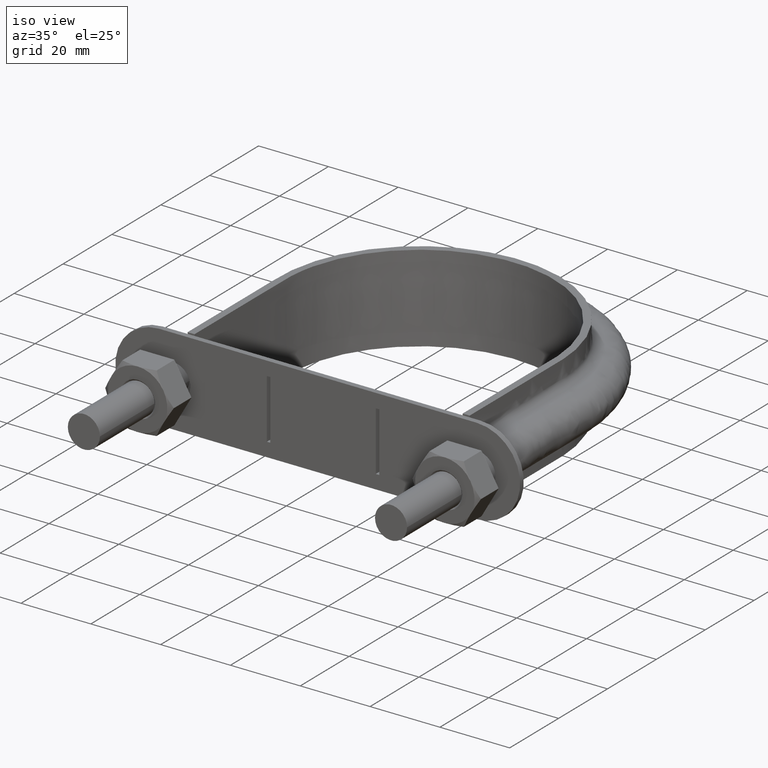
[diagram: clean part render]
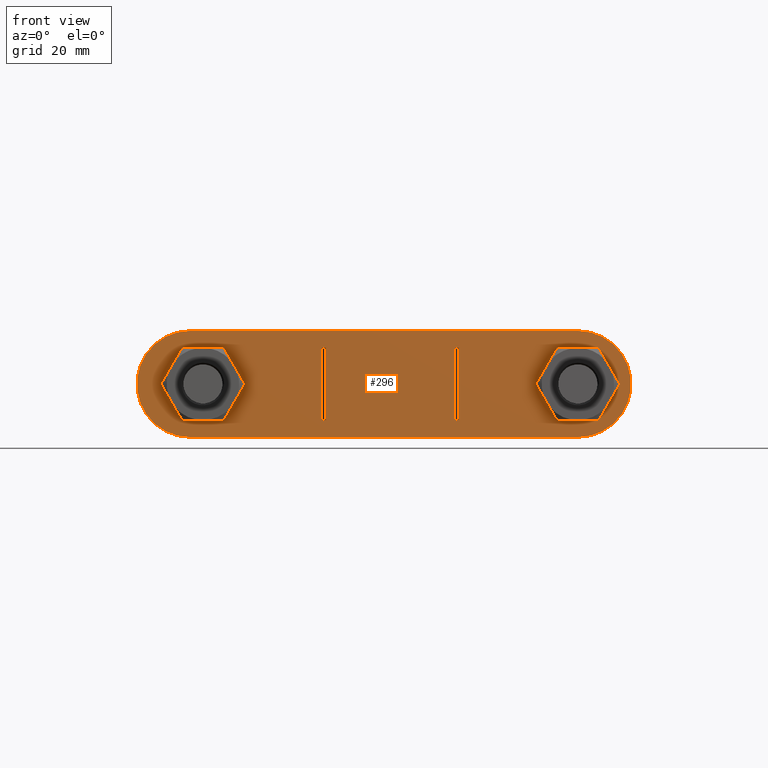
[diagram: tour spotlight — one face highlighted and labeled with its STEP entity id]
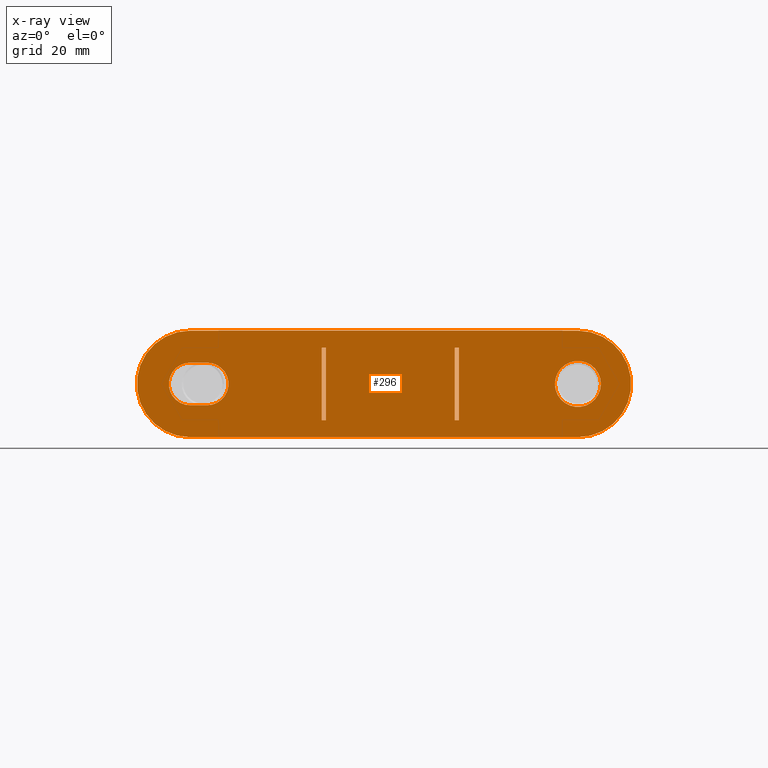
[diagram: x-ray of the same camera — body ghosted, this tour face saturated]
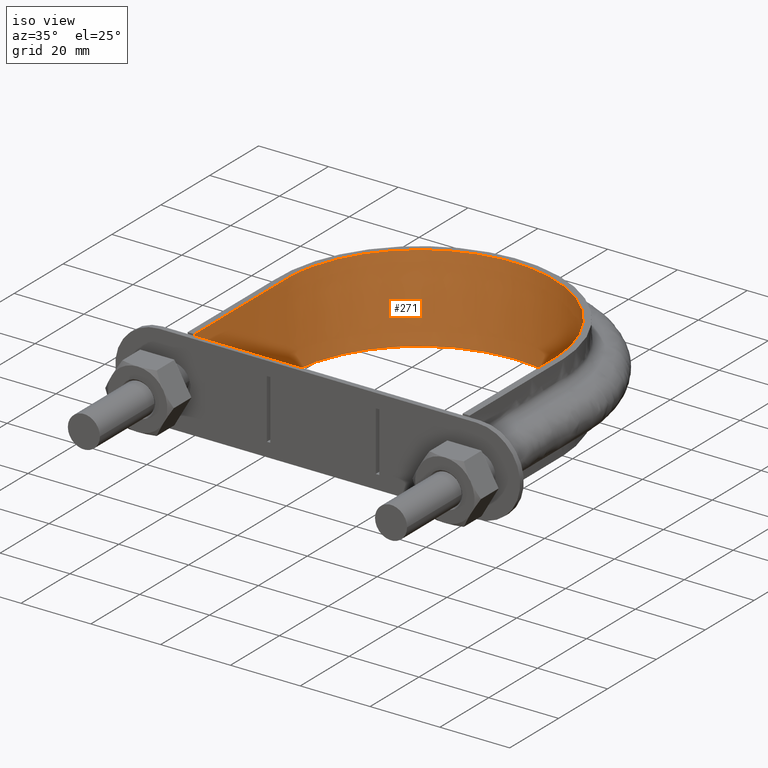
[diagram: tour spotlight — one face highlighted and labeled with its STEP entity id]
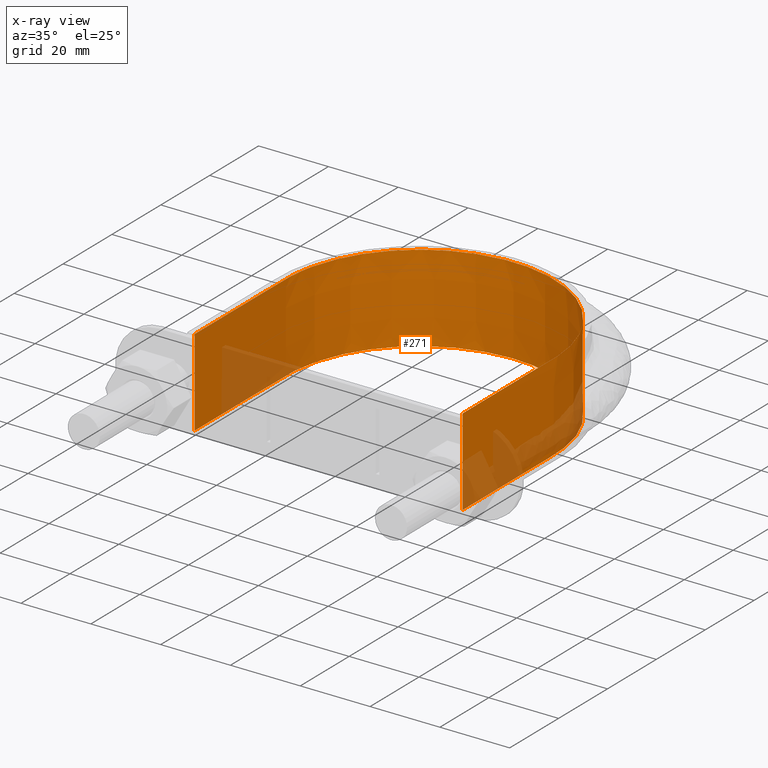
[diagram: x-ray of the same camera — body ghosted, this tour face saturated]
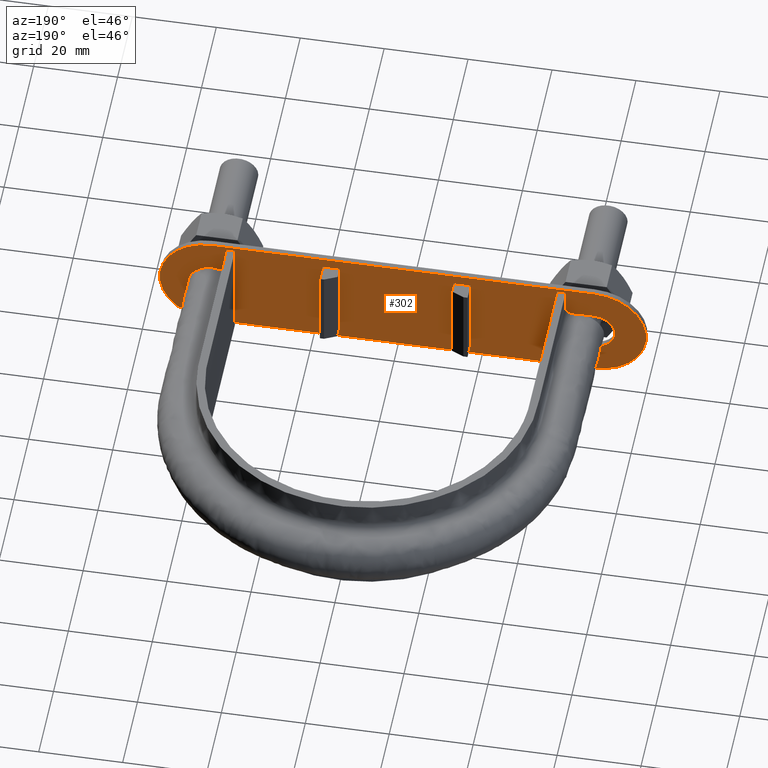
[diagram: tour spotlight — one face highlighted and labeled with its STEP entity id]
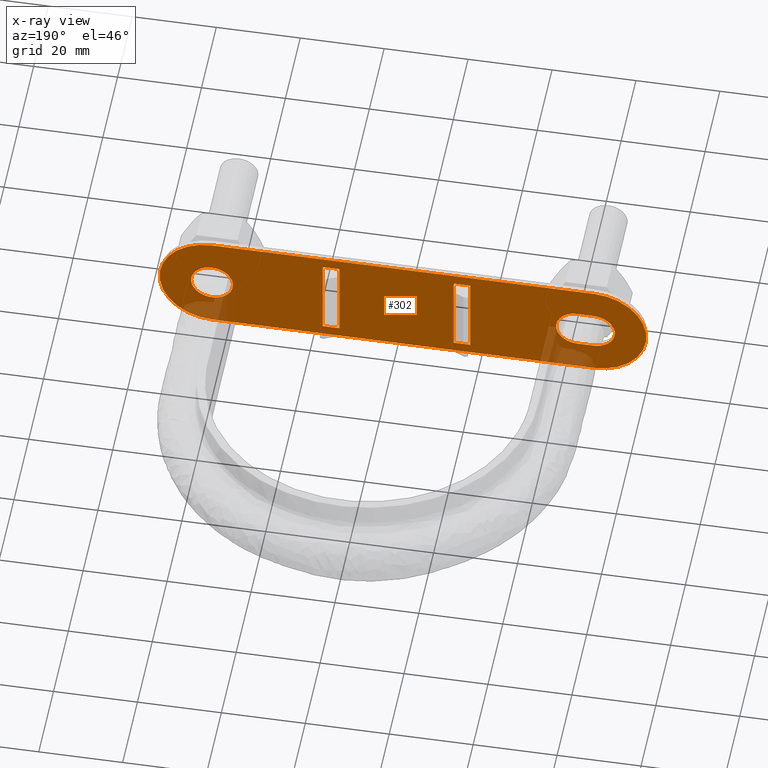
[diagram: x-ray of the same camera — body ghosted, this tour face saturated]
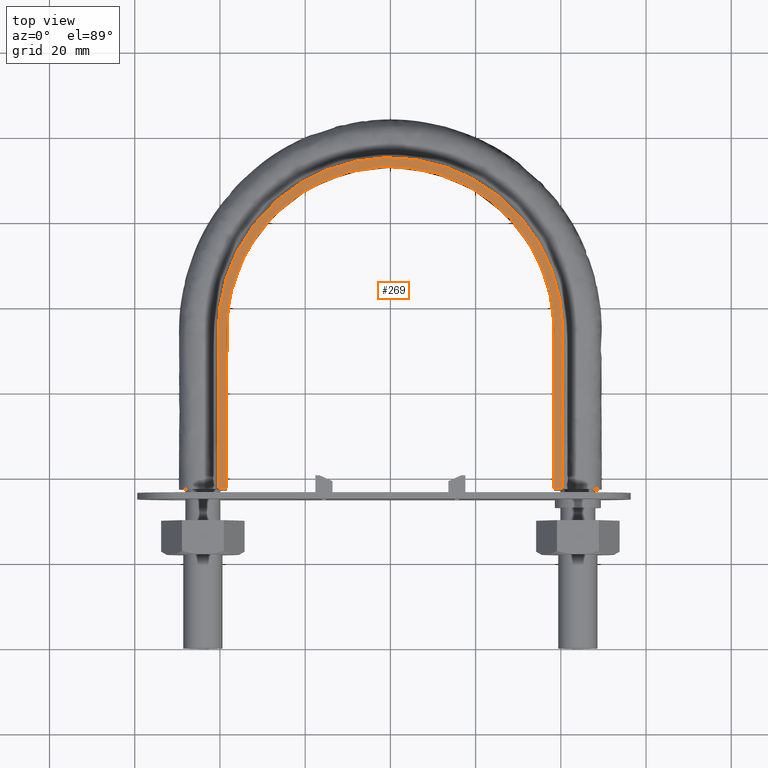
[diagram: tour spotlight — one face highlighted and labeled with its STEP entity id]
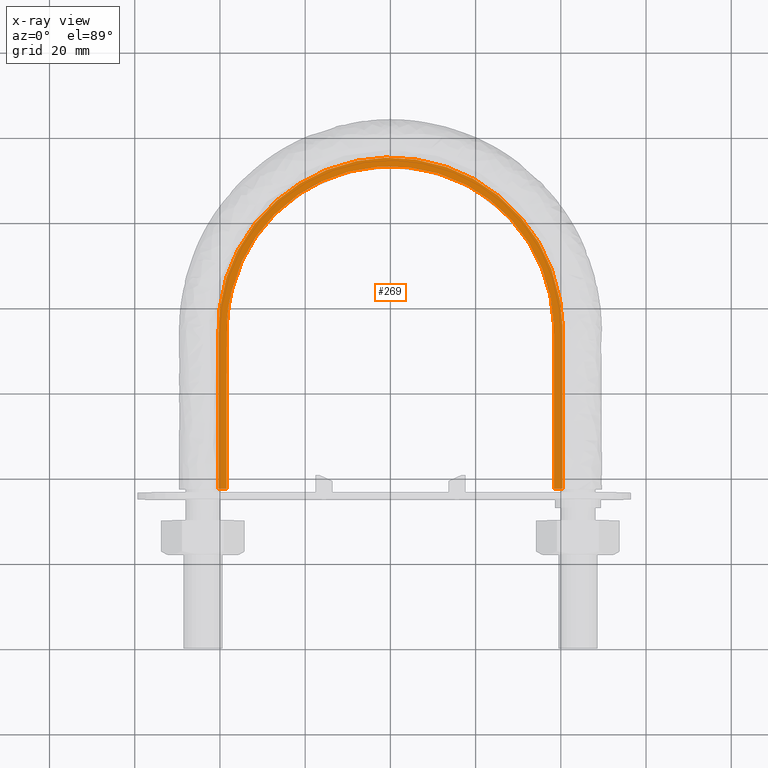
[diagram: x-ray of the same camera — body ghosted, this tour face saturated]
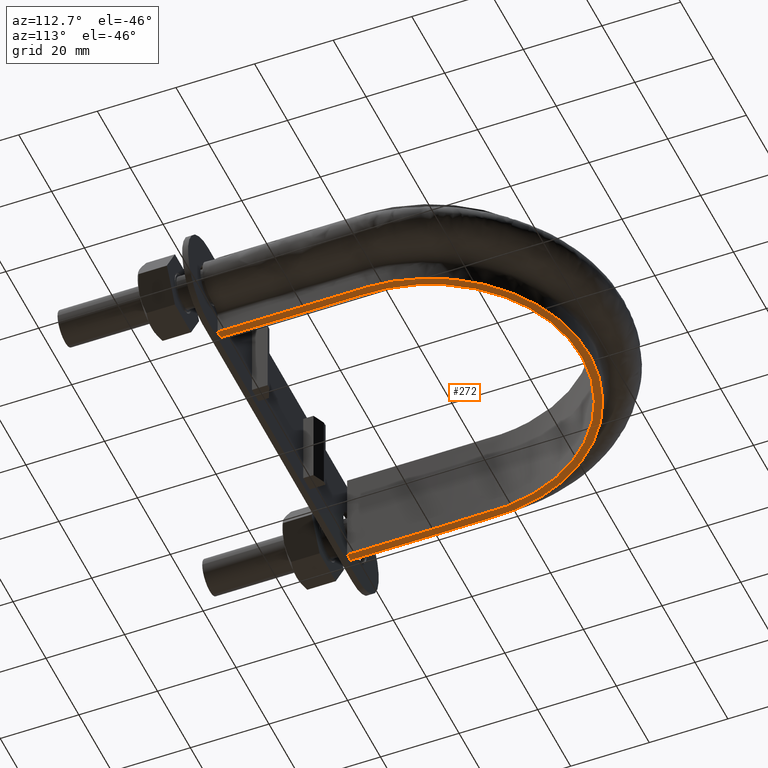
[diagram: tour spotlight — one face highlighted and labeled with its STEP entity id]
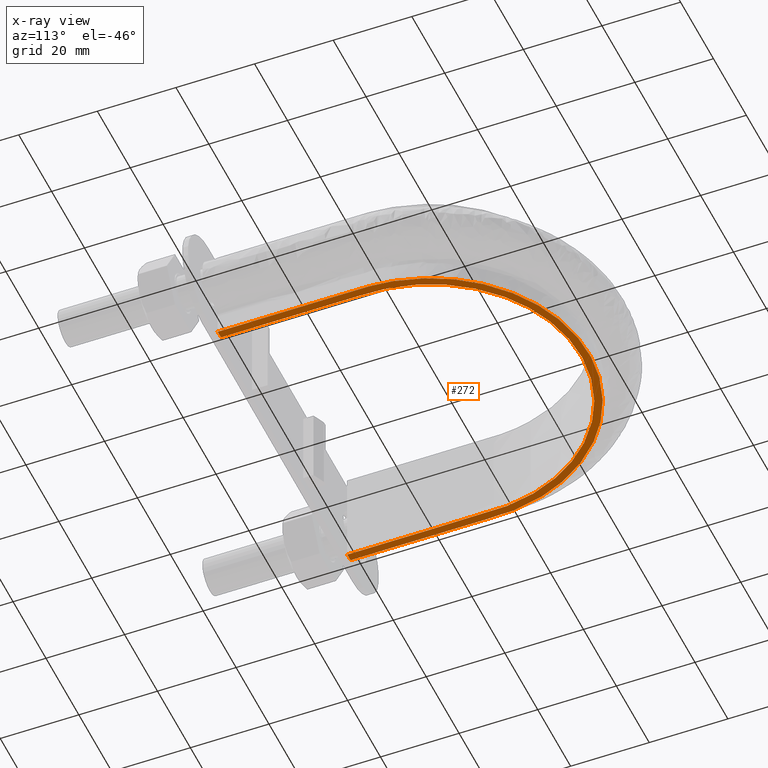
[diagram: x-ray of the same camera — body ghosted, this tour face saturated]
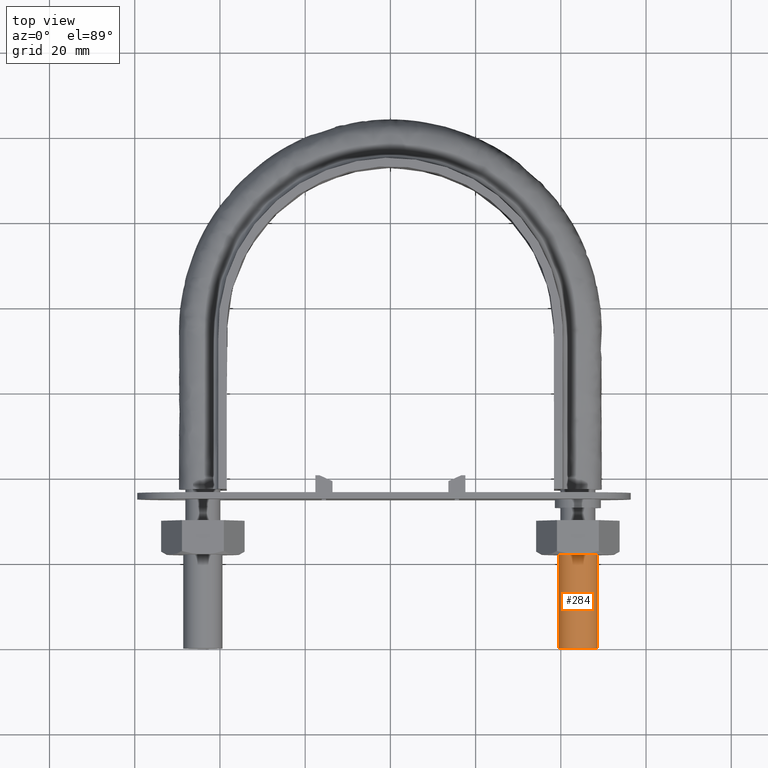
[diagram: tour spotlight — one face highlighted and labeled with its STEP entity id]
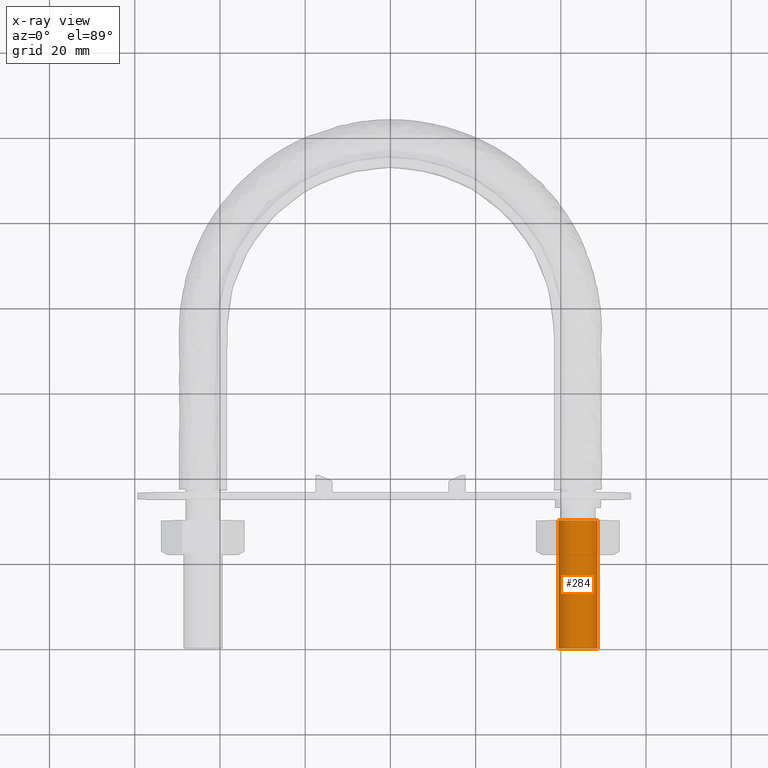
[diagram: x-ray of the same camera — body ghosted, this tour face saturated]
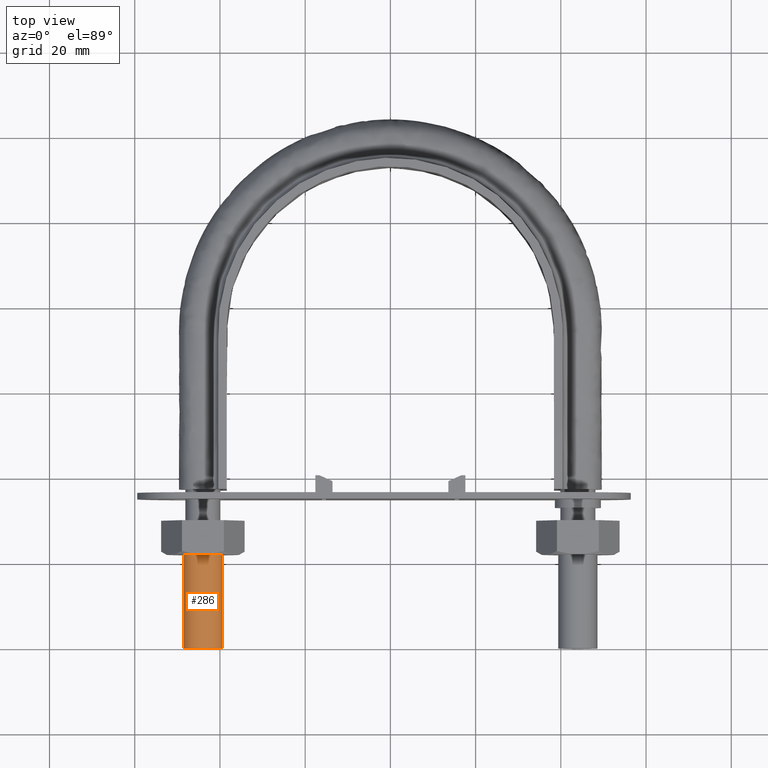
[diagram: tour spotlight — one face highlighted and labeled with its STEP entity id]
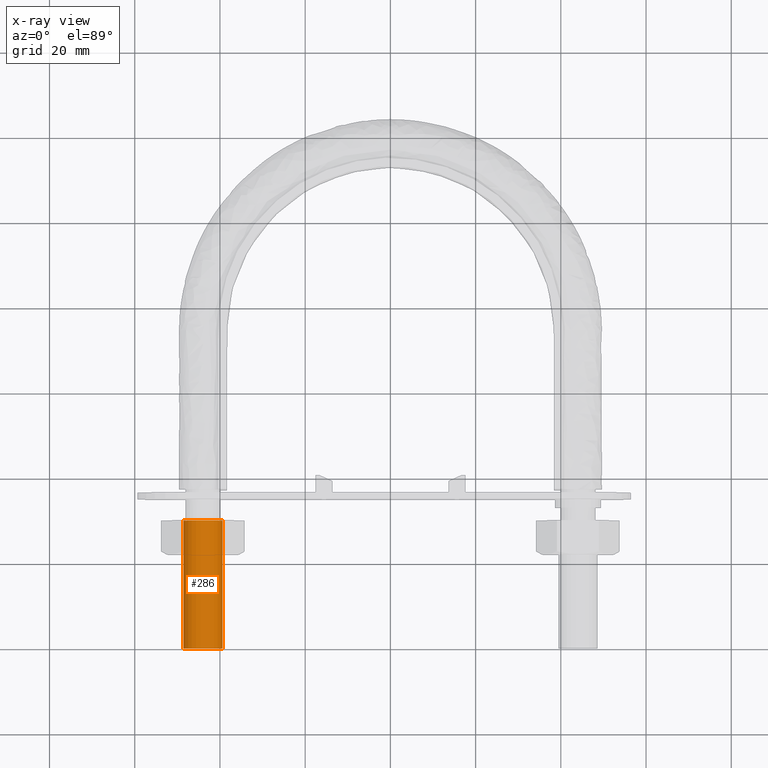
[diagram: x-ray of the same camera — body ghosted, this tour face saturated]
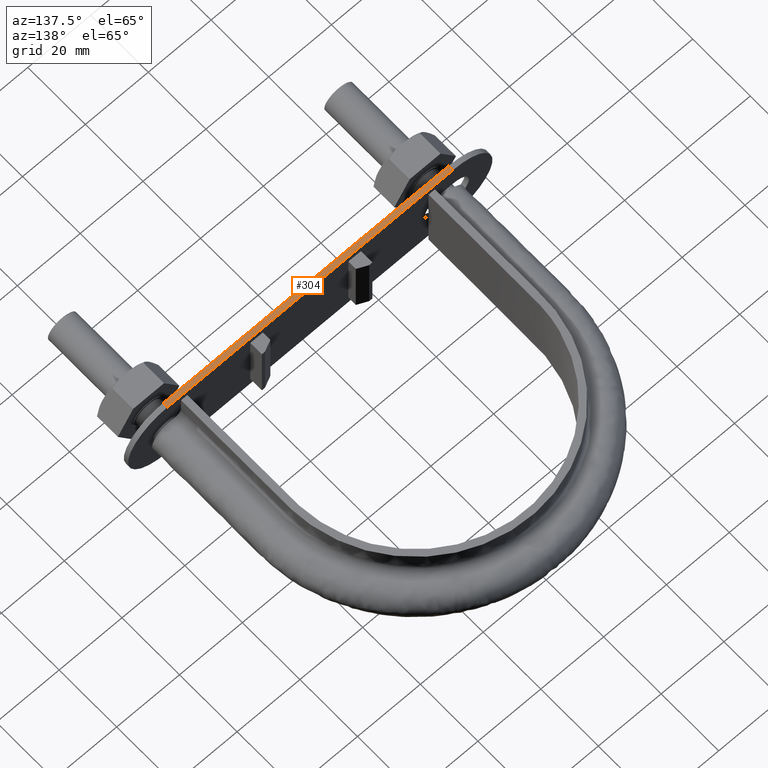
[diagram: tour spotlight — one face highlighted and labeled with its STEP entity id]
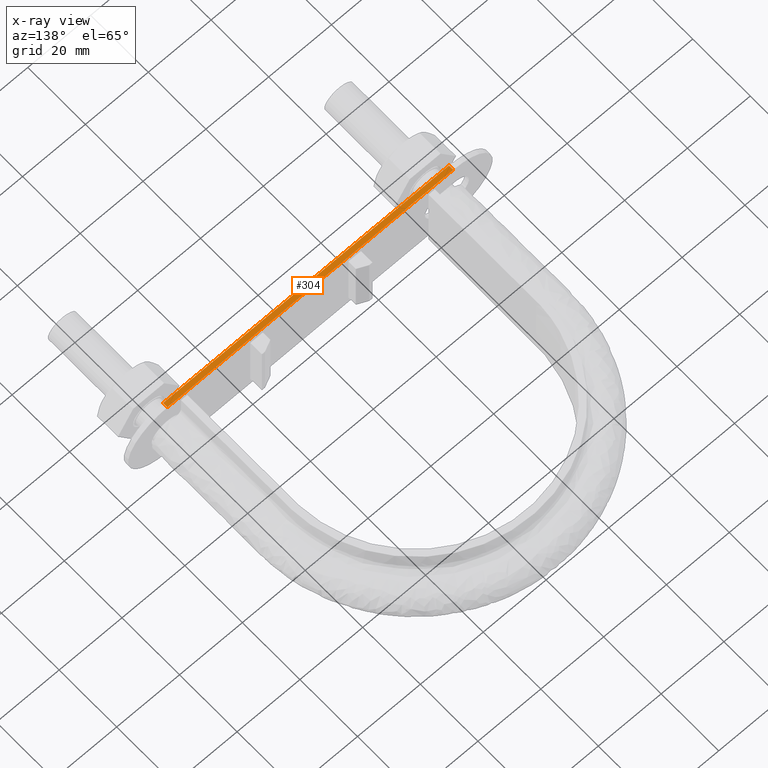
[diagram: x-ray of the same camera — body ghosted, this tour face saturated]
A machine part: a face-by-face anatomy tour. The part has 110 B-rep faces; the first image is the clean iso view, then the 8 largest visible faces are spotlighted one at a time (largest first), each with its STEP entity span.

Face 1 — front view, entity #296. An x-ray twin of the same camera follows (body ghosted, this face saturated) — the face is partly hidden behind the body. In plain terms, the highlighted planar face has unit normal (-0, 1, 0).
Definition (entity closure, byte-faithful):
#296 = ADVANCED_FACE( '', ( #443, #444, #445, #446, #447 ), #448, .F. );
#443 = FACE_OUTER_BOUND( '', #1367, .T. );
#444 = FACE_BOUND( '', #1368, .T. );
#445 = FACE_BOUND( '', #1369, .T. );
#446 = FACE_BOUND( '', #1370, .T. );
#447 = FACE_BOUND( '', #1371, .T. );
#448 = PLANE( '', #1372 );
#1367 = EDGE_LOOP( '', ( #1738, #1739, #1740, #1741 ) );
#1368 = EDGE_LOOP( '', ( #1742, #1743, #1744, #1745 ) );
#1369 = EDGE_LOOP( '', ( #1746 ) );
#1370 = EDGE_LOOP( '', ( #1747, #1748, #1749, #1750 ) );
#1371 = EDGE_LOOP( '', ( #1751, #1752, #1753, #1754 ) );
#1372 = AXIS2_PLACEMENT_3D( '', #1755, #1756, #1757 );
#1738 = ORIENTED_EDGE( '', *, *, #2399, .F. );
#1739 = ORIENTED_EDGE( '', *, *, #2400, .F. );
#1740 = ORIENTED_EDGE( '', *, *, #2401, .F. );
#1741 = ORIENTED_EDGE( '', *, *, #2402, .F. );
#1742 = ORIENTED_EDGE( '', *, *, #2403, .F. );
#1743 = ORIENTED_EDGE( '', *, *, #2404, .T. );
#1744 = ORIENTED_EDGE( '', *, *, #2405, .T. );
#1745 = ORIENTED_EDGE( '', *, *, #2406, .F. );
#1746 = ORIENTED_EDGE( '', *, *, #2407, .T. );
#1747 = ORIENTED_EDGE( '', *, *, #2408, .F. );
#1748 = ORIENTED_EDGE( '', *, *, #2409, .F. );
#1749 = ORIENTED_EDGE( '', *, *, #2410, .F. );
#1750 = ORIENTED_EDGE( '', *, *, #2411, .F. );
#1751 = ORIENTED_EDGE( '', *, *, #2412, .T. );
#1752 = ORIENTED_EDGE( '', *, *, #2413, .T. );
#1753 = ORIENTED_EDGE( '', *, *, #2414, .F. );
#1754 = ORIENTED_EDGE( '', *, *, #2415, .F. );
#1755 = CARTESIAN_POINT( '', ( -46.9999999974181, 34.9999999191038, 3.83343873051651E-013 ) );
#1756 = DIRECTION( '', ( -1.72119943411863E-009, 1.00000000000000, 1.90902509863633E-016 ) );
#1757 = DIRECTION( '', ( 1.10912487001477E-007, 0.000000000000000, 0.999999999999994 ) );
#2399 = EDGE_CURVE( '', #2659, #2660, #2661, .T. );
#2400 = EDGE_CURVE( '', #2662, #2659, #2663, .F. );
#2401 = EDGE_CURVE( '', #2664, #2662, #2665, .T. );
#2402 = EDGE_CURVE( '', #2660, #2664, #2666, .F. );
#2403 = EDGE_CURVE( '', #2667, #2668, #2669, .F. );
#2404 = EDGE_CURVE( '', #2667, #2670, #2671, .T. );
#2405 = EDGE_CURVE( '', #2670, #2672, #2673, .T. );
#2406 = EDGE_CURVE( '', #2668, #2672, #2674, .T. );
#2407 = EDGE_CURVE( '', #2675, #2675, #2676, .T. );
#2408 = EDGE_CURVE( '', #2677, #2678, #2679, .F. );
#2409 = EDGE_CURVE( '', #2680, #2677, #2681, .T. );
#2410 = EDGE_CURVE( '', #2682, #2680, #2683, .F. );
#2411 = EDGE_CURVE( '', #2678, #2682, #2684, .T. );
#2412 = EDGE_CURVE( '', #2685, #2686, #2687, .F. );
#2413 = EDGE_CURVE( '', #2686, #2688, #2689, .T. );
#2414 = EDGE_CURVE( '', #2690, #2688, #2691, .T. );
#2415 = EDGE_CURVE( '', #2685, #2690, #2692, .T. );
#2659 = VERTEX_POINT( '', #3284 );
#2660 = VERTEX_POINT( '', #3285 );
#2661 = CIRCLE( '', #3286, 12.4999999999987 );
#2662 = VERTEX_POINT( '', #3287 );
#2663 = LINE( '', #3288, #3289 );
#2664 = VERTEX_POINT( '', #3290 );
#2665 = CIRCLE( '', #3291, 12.4999999999987 );
#2666 = LINE( '', #3292, #3293 );
#2667 = VERTEX_POINT( '', #3294 );
#2668 = VERTEX_POINT( '', #3295 );
#2669 = LINE( '', #3296, #3297 );
#2670 = VERTEX_POINT( '', #3298 );
#2671 = LINE( '', #3299, #3300 );
#2672 = VERTEX_POINT( '', #3301 );
#2673 = LINE( '', #3302, #3303 );
#2674 = LINE( '', #3304, #3305 );
#2675 = VERTEX_POINT( '', #3306 );
#2676 = CIRCLE( '', #3307, 5.39999999999999 );
#2677 = VERTEX_POINT( '', #3308 );
#2678 = VERTEX_POINT( '', #3309 );
#2679 = CIRCLE( '', #3310, 4.99999999999947 );
#2680 = VERTEX_POINT( '', #3311 );
#2681 = LINE( '', #3312, #3313 );
#2682 = VERTEX_POINT( '', #3314 );
#2683 = CIRCLE( '', #3315, 4.99999999999947 );
#2684 = LINE( '', #3316, #3317 );
#2685 = VERTEX_POINT( '', #3318 );
#2686 = VERTEX_POINT( '', #3319 );
#2687 = LINE( '', #3320, #3321 );
#2688 = VERTEX_POINT( '', #3322 );
#2689 = LINE( '', #3323, #3324 );
#2690 = VERTEX_POINT( '', #3325 );
#2691 = LINE( '', #3326, #3327 );
#2692 = LINE( '', #3328, #3329 );
#3284 = CARTESIAN_POINT( '', ( -46.9999999974181, 34.9999999191038, -12.4999999999983 ) );
#3285 = CARTESIAN_POINT( '', ( -46.9999999974181, 34.9999999191038, 12.4999999999991 ) );
#3286 = AXIS2_PLACEMENT_3D( '', #3886, #3887, #3888 );
#3287 = CARTESIAN_POINT( '', ( 44.0000000025818, 35.0000000757329, -12.4999999999983 ) );
#3288 = CARTESIAN_POINT( '', ( 44.0000000025818, 35.0000000757330, -12.4999999999983 ) );
#3289 = VECTOR( '', #3889, 1000.00000000000 );
#3290 = CARTESIAN_POINT( '', ( 44.0000000025818, 35.0000000757329, 12.4999999999991 ) );
#3291 = AXIS2_PLACEMENT_3D( '', #3890, #3891, #3892 );
#3292 = CARTESIAN_POINT( '', ( -46.9999999974181, 34.9999999191038, 12.4999999999991 ) );
#3293 = VECTOR( '', #3893, 1000.00000000000 );
#3294 = CARTESIAN_POINT( '', ( -16.0999999974182, 34.9999999722889, -8.49999999999872 ) );
#3295 = CARTESIAN_POINT( '', ( -15.0999999974181, 34.9999999740101, -8.49999999999872 ) );
#3296 = CARTESIAN_POINT( '', ( -16.0999999974182, 34.9999999722889, -8.49999999999872 ) );
#3297 = VECTOR( '', #3894, 1000.00000000000 );
#3298 = CARTESIAN_POINT( '', ( -16.0999999974182, 34.9999999722889, 8.49999999999947 ) );
#3299 = CARTESIAN_POINT( '', ( -16.0999999974182, 34.9999999722889, 3.70482938809738E-013 ) );
#3300 = VECTOR( '', #3895, 1000.00000000000 );
#3301 = CARTESIAN_POINT( '', ( -15.0999999974181, 34.9999999740101, 8.49999999999947 ) );
#3302 = CARTESIAN_POINT( '', ( -46.9999999974181, 34.9999999191038, 8.49999999999947 ) );
#3303 = VECTOR( '', #3896, 1000.00000000000 );
#3304 = CARTESIAN_POINT( '', ( -15.0999999974181, 34.9999999740101, -8.49999999999872 ) );
#3305 = VECTOR( '', #3897, 1000.00000000000 );
#3306 = CARTESIAN_POINT( '', ( 38.6000000025817, 35.0000000664385, 3.58100495395979E-013 ) );
#3307 = AXIS2_PLACEMENT_3D( '', #3898, #3899, #3900 );
#3308 = CARTESIAN_POINT( '', ( -46.9999999974181, 34.9999999191038, 4.99999999999985 ) );
#3309 = CARTESIAN_POINT( '', ( -46.9999999974181, 34.9999999191038, -4.99999999999908 ) );
#3310 = AXIS2_PLACEMENT_3D( '', #3901, #3902, #3903 );
#3311 = CARTESIAN_POINT( '', ( -42.9999999974181, 34.9999999259886, 4.99999999999985 ) );
#3312 = CARTESIAN_POINT( '', ( -42.9999999974181, 34.9999999259886, 4.99999999999985 ) );
#3313 = VECTOR( '', #3904, 1000.00000000000 );
#3314 = CARTESIAN_POINT( '', ( -42.9999999974181, 34.9999999259886, -4.99999999999908 ) );
#3315 = AXIS2_PLACEMENT_3D( '', #3905, #3906, #3907 );
#3316 = CARTESIAN_POINT( '', ( -46.9999999974181, 34.9999999191038, -4.99999999999908 ) );
#3317 = VECTOR( '', #3908, 1000.00000000000 );
#3318 = CARTESIAN_POINT( '', ( 16.1000000025818, 35.0000000277115, -8.49999999999873 ) );
#3319 = CARTESIAN_POINT( '', ( 15.1000000025818, 35.0000000259903, -8.49999999999873 ) );
#3320 = CARTESIAN_POINT( '', ( -46.9999999974181, 34.9999999191038, -8.49999999999873 ) );
#3321 = VECTOR( '', #3909, 1000.00000000000 );
#3322 = CARTESIAN_POINT( '', ( 15.1000000025818, 35.0000000259903, 8.49999999999946 ) );
#3323 = CARTESIAN_POINT( '', ( 15.1000000025818, 35.0000000259903, 3.72369943869765E-013 ) );
#3324 = VECTOR( '', #3910, 1000.00000000000 );
#3325 = CARTESIAN_POINT( '', ( 16.1000000025818, 35.0000000277115, 8.49999999999946 ) );
#3326 = CARTESIAN_POINT( '', ( 16.1000000025818, 35.0000000277115, 8.49999999999946 ) );
#3327 = VECTOR( '', #3911, 1000.00000000000 );
#3328 = CARTESIAN_POINT( '', ( 16.1000000025818, 35.0000000277115, -8.49999999999873 ) );
#3329 = VECTOR( '', #3912, 1000.00000000000 );
#3886 = CARTESIAN_POINT( '', ( -46.9999999974181, 34.9999999191038, 3.83343873051651E-013 ) );
#3887 = DIRECTION( '', ( -1.72119943411863E-009, 1.00000000000000, 1.90902509863633E-016 ) );
#3888 = DIRECTION( '', ( -1.00000000000000, -1.72119943411863E-009, 0.000000000000000 ) );
#3889 = DIRECTION( '', ( 1.00000000000000, 1.72119943411863E-009, -2.96462649798337E-016 ) );
#3890 = CARTESIAN_POINT( '', ( 44.0000000025818, 35.0000000757329, 3.56365771920002E-013 ) );
#3891 = DIRECTION( '', ( -1.72119943411863E-009, 1.00000000000000, 1.90902509863633E-016 ) );
#3892 = DIRECTION( '', ( -1.00000000000000, -1.72119943411863E-009, 0.000000000000000 ) );
#3893 = DIRECTION( '', ( -1.00000000000000, -1.72119943411863E-009, -3.28581347666297E-025 ) );
#3894 = DIRECTION( '', ( -1.00000000000000, -1.72119943411863E-009, 5.37241042523093E-026 ) );
#3895 = DIRECTION( '', ( 4.16211464468154E-016, -1.90902509147250E-016, 1.00000000000000 ) );
#3896 = DIRECTION( '', ( 1.00000000000000, 1.72119943411863E-009, -5.37241042523093E-026 ) );
#3897 = DIRECTION( '', ( 4.16211464468154E-016, -1.90902509147250E-016, 1.00000000000000 ) );
#3898 = CARTESIAN_POINT( '', ( 44.0000000025817, 35.0000000757329, 3.58100495395979E-013 ) );
#3899 = DIRECTION( '', ( -1.72119943411863E-009, 1.00000000000000, 1.90902509863633E-016 ) );
#3900 = DIRECTION( '', ( -1.00000000000000, -1.72119943411863E-009, 0.000000000000000 ) );
#3901 = CARTESIAN_POINT( '', ( -46.9999999974181, 34.9999999191038, 3.85078596527628E-013 ) );
#3902 = DIRECTION( '', ( -1.72119943411863E-009, 1.00000000000000, 1.90902509863633E-016 ) );
#3903 = DIRECTION( '', ( -1.00000000000000, -1.72119943411863E-009, 0.000000000000000 ) );
#3904 = DIRECTION( '', ( -1.00000000000000, -1.72119943411863E-009, -3.28581347666297E-025 ) );
#3905 = CARTESIAN_POINT( '', ( -42.9999999974181, 34.9999999259886, 3.83892745928434E-013 ) );
#3906 = DIRECTION( '', ( -1.72119943411863E-009, 1.00000000000000, 1.90902509863633E-016 ) );
#3907 = DIRECTION( '', ( -1.00000000000000, -1.72119943411863E-009, 0.000000000000000 ) );
#3908 = DIRECTION( '', ( 1.00000000000000, 1.72119943411863E-009, -2.96462649798337E-016 ) );
#3909 = DIRECTION( '', ( 1.00000000000000, 1.72119943411863E-009, -5.37241042523093E-026 ) );
#3910 = DIRECTION( '', ( 1.76713835785680E-016, -1.90902509559473E-016, 1.00000000000000 ) );
#3911 = DIRECTION( '', ( -1.00000000000000, -1.72119943411863E-009, 5.37241042523093E-026 ) );
#3912 = DIRECTION( '', ( 1.76713835785680E-016, -1.90902509559473E-016, 1.00000000000000 ) );

Face 2 — iso view, entity #271. An x-ray twin of the same camera follows (body ghosted, this face saturated) — the face is partly hidden behind the body. In plain terms, the highlighted face is a SurfaceOfExtrusion surface.
Definition (entity closure, byte-faithful):
#271 = ADVANCED_FACE( '', ( #386 ), #387, .T. );
#386 = FACE_OUTER_BOUND( '', #1160, .T. );
#387 = SURFACE_OF_LINEAR_EXTRUSION( '', #1161, #1162 );
#1160 = EDGE_LOOP( '', ( #1575, #1576, #1577, #1578 ) );
#1161 = B_SPLINE_CURVE_WITH_KNOTS( '', 3, ( #1579, #1580, #1581, #1582, #1583, #1584, #1585, #1586, #1587, #1588, #1589, #1590, #1591, #1592, #1593, #1594, #1595 ), .UNSPECIFIED., .F., .F., ( 4, 3, 1, 1, 1, 1, 1, 1, 1, 3, 4 ), ( -7.93017456359102, -7.00000000000000, -6.50000000000000, -6.00000000000000, -5.00000000000000, -4.00000000000000, -3.00000000000000, -2.00000000000000, -1.50000000000000, -1.00000000000000, -0.0698254364089773 ), .UNSPECIFIED. );
#1162 = VECTOR( '', #1596, 1000.00000000000 );
#1575 = ORIENTED_EDGE( '', *, *, #2353, .T. );
#1576 = ORIENTED_EDGE( '', *, *, #2364, .T. );
#1577 = ORIENTED_EDGE( '', *, *, #2362, .F. );
#1578 = ORIENTED_EDGE( '', *, *, #2360, .T. );
#1579 = CARTESIAN_POINT( '', ( 38.4000000000000, 37.3000000000000, 12.5000100000909 ) );
#1580 = CARTESIAN_POINT( '', ( 38.4000000000000, 49.7333333333333, 12.5000100000909 ) );
#1581 = CARTESIAN_POINT( '', ( 38.4000000000000, 62.1666666666667, 12.5000100000909 ) );
#1582 = CARTESIAN_POINT( '', ( 38.4000000000000, 74.6000000000000, 12.5000100000909 ) );
#1583 = CARTESIAN_POINT( '', ( 38.4000000000000, 77.9378960382428, 12.5000100000909 ) );
#1584 = CARTESIAN_POINT( '', ( 37.5004323173849, 84.6534987012364, 12.5000100000909 ) );
#1585 = CARTESIAN_POINT( '', ( 32.3590360537293, 97.1468427507952, 12.5000100000909 ) );
#1586 = CARTESIAN_POINT( '', ( 20.0971465093487, 109.410921736661, 12.5000100000909 ) );
#1587 = CARTESIAN_POINT( '', ( 2.79356000082899E-014, 114.794539131670, 12.5000100000909 ) );
#1588 = CARTESIAN_POINT( '', ( -20.0971465093486, 109.410921736661, 12.5000100000909 ) );
#1589 = CARTESIAN_POINT( '', ( -32.3590360537293, 97.1468427507952, 12.5000100000909 ) );
#1590 = CARTESIAN_POINT( '', ( -37.5004323173848, 84.6534987012364, 12.5000100000909 ) );
#1591 = CARTESIAN_POINT( '', ( -38.4000000000000, 77.9378960382428, 12.5000100000909 ) );
#1592 = CARTESIAN_POINT( '', ( -38.4000000000000, 74.6000000000000, 12.5000100000909 ) );
#1593 = CARTESIAN_POINT( '', ( -38.4000000000000, 62.1666666666667, 12.5000100000909 ) );
#1594 = CARTESIAN_POINT( '', ( -38.4000000000000, 49.7333333333333, 12.5000100000909 ) );
#1595 = CARTESIAN_POINT( '', ( -38.4000000000000, 37.3000000000000, 12.5000100000909 ) );
#1596 = DIRECTION( '', ( 0.000000000000000, 0.000000000000000, -1.00000000000000 ) );
#2353 = EDGE_CURVE( '', #2585, #2586, #2587, .T. );
#2360 = EDGE_CURVE( '', #2598, #2585, #2599, .T. );
#2362 = EDGE_CURVE( '', #2598, #2601, #2602, .T. );
#2364 = EDGE_CURVE( '', #2586, #2601, #2604, .F. );
#2585 = VERTEX_POINT( '', #2969 );
#2586 = VERTEX_POINT( '', #2970 );
#2587 = LINE( '', #2971, #2972 );
#2598 = VERTEX_POINT( '', #3077 );
#2599 = B_SPLINE_CURVE_WITH_KNOTS( '', 3, ( #3078, #3079, #3080, #3081, #3082, #3083, #3084, #3085, #3086, #3087, #3088, #3089, #3090, #3091, #3092, #3093, #3094, #3095, #3096, #3097, #3098, #3099, #3100, #3101, #3102, #3103, #3104, #3105, #3106, #3107, #3108, #3109, #3110, #3111, #3112, #3113, #3114, #3115, #3116, #3117, #3118, #3119, #3120, #3121, #3122, #3123, #3124, #3125, #3126, #3127, #3128, #3129, #3130, #3131, #3132, #3133, #3134, #3135, #3136, #3137, #3138, #3139, #3140, #3141, #3142, #3143, #3144, #3145, #3146, #3147, #3148, #3149, #3150, #3151, #3152, #3153, #3154, #3155, #3156, #3157, #3158, #3159, #3160, #3161, #3162, #3163 ), .UNSPECIFIED., .F., .F., ( 4, 1, 2, 2, 2, 2, 2, 2, 2, 2, 2, 2, 2, 2, 2, 2, 2, 2, 2, 2, 2, 2, 2, 2, 2, 2, 2, 2, 2, 2, 2, 2, 2, 2, 2, 2, 2, 2, 2, 2, 2, 2, 1, 4 ), ( 0.000000000000000, 0.0243379018108098, 0.0365068527162147, 0.0380279715793904, 0.0395490904425660, 0.0425913281689173, 0.0456335658952686, 0.0486758036216198, 0.0547602790743224, 0.0578025168006737, 0.0593236356638494, 0.0608447545270250, 0.0669292299797277, 0.0699714677060791, 0.0714925865692548, 0.0730137054324304, 0.0790981808851331, 0.0851826563378357, 0.0867037752010114, 0.0882248940641870, 0.0912671317905383, 0.0973516072432409, 0.0988727261064166, 0.100393844969592, 0.103436082695944, 0.109520558148646, 0.112562795874997, 0.115605033601349, 0.121689509054051, 0.123210627917227, 0.124731746780403, 0.127773984506754, 0.133858459959457, 0.136900697685808, 0.139942935412159, 0.146027410864862, 0.149069648591213, 0.150590767454389, 0.152111886317564, 0.155154124043915, 0.156675242907091, 0.158196361770267, 0.170365312675672, 0.194703214486481 ), .UNSPECIFIED. );
#2601 = VERTEX_POINT( '', #3166 );
#2602 = LINE( '', #3167, #3168 );
#2604 = B_SPLINE_CURVE_WITH_KNOTS( '', 3, ( #3171, #3172, #3173, #3174, #3175, #3176, #3177, #3178, #3179, #3180, #3181, #3182, #3183, #3184, #3185, #3186, #3187 ), .UNSPECIFIED., .F., .F., ( 4, 3, 1, 1, 1, 1, 1, 1, 1, 3, 4 ), ( -7.93017456359102, -7.00000000000000, -6.50000000000000, -6.00000000000000, -5.00000000000000, -4.00000000000000, -3.00000000000000, -2.00000000000000, -1.50000000000000, -1.00000000000000, -0.0698254364089773 ), .UNSPECIFIED. );
#2969 = CARTESIAN_POINT( '', ( -38.4000000000000, 37.3000000000000, 12.5000000000000 ) );
#2970 = CARTESIAN_POINT( '', ( -38.4000000000000, 37.3000000000000, -12.5000000000000 ) );
#2971 = CARTESIAN_POINT( '', ( -38.4000000000000, 37.3000000000000, 12.5000100000909 ) );
#2972 = VECTOR( '', #3820, 1000.00000000000 );
#3077 = CARTESIAN_POINT( '', ( 38.4000000000000, 37.3000000000000, 12.5000000000000 ) );
#3078 = CARTESIAN_POINT( '', ( 38.4000000000000, 37.3000000000000, 12.5000000000000 ) );
#3079 = CARTESIAN_POINT( '', ( 38.4000000000000, 45.4126339369367, 12.5000000000000 ) );
#3080 = CARTESIAN_POINT( '', ( 38.4000000000000, 57.5815848423418, 12.5000000000000 ) );
#3081 = CARTESIAN_POINT( '', ( 38.4000000000000, 69.7505357477468, 12.5000000000000 ) );
#3082 = CARTESIAN_POINT( '', ( 38.4000000000000, 74.3138923372737, 12.5000000000000 ) );
#3083 = CARTESIAN_POINT( '', ( 38.4027743076037, 74.8211194098904, 12.5000000000000 ) );
#3084 = CARTESIAN_POINT( '', ( 38.3830167791574, 75.8338636956792, 12.5000000000000 ) );
#3085 = CARTESIAN_POINT( '', ( 38.3628782069929, 76.3395426144401, 12.5000000000000 ) );
#3086 = CARTESIAN_POINT( '', ( 38.2722040230530, 77.8545348977657, 12.5000000000000 ) );
#3087 = CARTESIAN_POINT( '', ( 38.1714849409613, 78.8618088567026, 12.5000000000000 ) );
#3088 = CARTESIAN_POINT( '', ( 37.8904277266656, 80.8709771566200, 12.5000000000000 ) );
#3089 = CARTESIAN_POINT( '', ( 37.7100929165158, 81.8728717220618, 12.5000000000000 ) );
#3090 = CARTESIAN_POINT( '', ( 37.2682777085645, 83.8711780914732, 12.5000000000000 ) );
#3091 = CARTESIAN_POINT( '', ( 37.0058649207665, 84.8692095980045, 12.5000000000000 ) );
#3092 = CARTESIAN_POINT( '', ( 36.1099085355124, 87.8004283289942, 12.5000000000000 ) );
#3093 = CARTESIAN_POINT( '', ( 35.3652812283339, 89.6892778605103, 12.5000000000000 ) );
#3094 = CARTESIAN_POINT( '', ( 34.0270721353676, 92.4244820465236, 12.5000000000000 ) );
#3095 = CARTESIAN_POINT( '', ( 33.5438803306412, 93.3197635736672, 12.5000000000000 ) );
#3096 = CARTESIAN_POINT( '', ( 32.7614856080269, 94.6371533741601, 12.5000000000000 ) );
#3097 = CARTESIAN_POINT( '', ( 32.4911122498971, 95.0720394393449, 12.5000000000000 ) );
#3098 = CARTESIAN_POINT( '', ( 31.9310694523164, 95.9332591910994, 12.5000000000000 ) );
#3099 = CARTESIAN_POINT( '', ( 31.6416548483075, 96.3590998328813, 12.5000000000000 ) );
#3100 = CARTESIAN_POINT( '', ( 30.1598500561493, 98.4479727097781, 12.5000000000000 ) );
#3101 = CARTESIAN_POINT( '', ( 28.8544690281686, 100.006253780205, 12.5000000000000 ) );
#3102 = CARTESIAN_POINT( '', ( 26.7242269234556, 102.181725572989, 12.5000000000000 ) );
#3103 = CARTESIAN_POINT( '', ( 25.9852601970117, 102.879711605143, 12.5000000000000 ) );
#3104 = CARTESIAN_POINT( '', ( 24.8327554866621, 103.885251295441, 12.5000000000000 ) );
#3105 = CARTESIAN_POINT( '', ( 24.4412331318476, 104.213513644747, 12.5000000000000 ) );
#3106 = CARTESIAN_POINT( '', ( 23.6432116170530, 104.855950622700, 12.5000000000000 ) );
#3107 = CARTESIAN_POINT( '', ( 23.2357844532913, 105.170799679600, 12.5000000000000 ) );
#3108 = CARTESIAN_POINT( '', ( 21.1728995967700, 106.699717522121, 12.5000000000000 ) );
#3109 = CARTESIAN_POINT( '', ( 19.4461214786923, 107.775116348712, 12.5000000000000 ) );
#3110 = CARTESIAN_POINT( '', ( 15.8424012951627, 109.635807157407, 12.5000000000000 ) );
#3111 = CARTESIAN_POINT( '', ( 13.9663663217124, 110.422851581443, 12.5000000000000 ) );
#3112 = CARTESIAN_POINT( '', ( 11.5271708169512, 111.224762065559, 12.5000000000000 ) );
#3113 = CARTESIAN_POINT( '', ( 11.0351210878858, 111.375746188077, 12.5000000000000 ) );
#3114 = CARTESIAN_POINT( '', ( 10.0502423640907, 111.656786422983, 12.5000000000000 ) );
#3115 = CARTESIAN_POINT( '', ( 9.55637016529625, 111.787194835959, 12.5000000000000 ) );
#3116 = CARTESIAN_POINT( '', ( 8.07051418322863, 112.148502213832, 12.5000000000000 ) );
#3117 = CARTESIAN_POINT( '', ( 7.07429985999578, 112.349545743025, 12.5000000000000 ) );
#3118 = CARTESIAN_POINT( '', ( 4.06886690428282, 112.834187354575, 12.5000000000000 ) );
#3119 = CARTESIAN_POINT( '', ( 2.04300780873477, 113.000351662540, 12.5000000000000 ) );
#3120 = CARTESIAN_POINT( '', ( -0.518810472446216, 112.999911391897, 12.5000000000000 ) );
#3121 = CARTESIAN_POINT( '', ( -1.03384934041133, 112.989267949139, 12.5000000000000 ) );
#3122 = CARTESIAN_POINT( '', ( -2.05999227101034, 112.947123645522, 12.5000000000000 ) );
#3123 = CARTESIAN_POINT( '', ( -2.57100025916374, 112.915690794062, 12.5000000000000 ) );
#3124 = CARTESIAN_POINT( '', ( -4.09798525337127, 112.791070625937, 12.5000000000000 ) );
#3125 = CARTESIAN_POINT( '', ( -5.10793619044573, 112.667626472700, 12.5000000000000 ) );
#3126 = CARTESIAN_POINT( '', ( -8.11438462156143, 112.179780837089, 12.5000000000000 ) );
#3127 = CARTESIAN_POINT( '', ( -10.0876738344830, 111.698850790019, 12.5000000000000 ) );
#3128 = CARTESIAN_POINT( '', ( -13.0003199951631, 110.740024822744, 12.5000000000000 ) );
#3129 = CARTESIAN_POINT( '', ( -13.9672170977488, 110.378727202231, 12.5000000000000 ) );
#3130 = CARTESIAN_POINT( '', ( -15.8546719802246, 109.585984907772, 12.5000000000000 ) );
#3131 = CARTESIAN_POINT( '', ( -16.7774313079128, 109.154197465975, 12.5000000000000 ) );
#3132 = CARTESIAN_POINT( '', ( -19.4833402127083, 107.753490344414, 12.5000000000000 ) );
#3133 = CARTESIAN_POINT( '', ( -21.2036319794211, 106.678400373100, 12.5000000000000 ) );
#3134 = CARTESIAN_POINT( '', ( -23.2504143165323, 105.159581599005, 12.5000000000000 ) );
#3135 = CARTESIAN_POINT( '', ( -23.6545765017690, 104.847044416500, 12.5000000000000 ) );
#3136 = CARTESIAN_POINT( '', ( -24.4524162332019, 104.204260920726, 12.5000000000000 ) );
#3137 = CARTESIAN_POINT( '', ( -24.8469576925090, 103.873240647292, 12.5000000000000 ) );
#3138 = CARTESIAN_POINT( '', ( -26.0068899055369, 102.860053871450, 12.5000000000000 ) );
#3139 = CARTESIAN_POINT( '', ( -26.7486892538446, 102.158088969384, 12.5000000000000 ) );
#3140 = CARTESIAN_POINT( '', ( -28.8823748109423, 99.9749913172513, 12.5000000000000 ) );
#3141 = CARTESIAN_POINT( '', ( -30.1833131714202, 98.4172992895716, 12.5000000000000 ) );
#3142 = CARTESIAN_POINT( '', ( -31.9490860628641, 95.9244952680189, 12.5000000000000 ) );
#3143 = CARTESIAN_POINT( '', ( -32.5065492449490, 95.0673574400839, 12.5000000000000 ) );
#3144 = CARTESIAN_POINT( '', ( -33.5561706257857, 93.2981084952210, 12.5000000000000 ) );
#3145 = CARTESIAN_POINT( '', ( -34.0419906193420, 92.3961278792795, 12.5000000000000 ) );
#3146 = CARTESIAN_POINT( '', ( -35.3824842141314, 89.6497254279650, 12.5000000000000 ) );
#3147 = CARTESIAN_POINT( '', ( -36.1236281599901, 87.7611046726046, 12.5000000000000 ) );
#3148 = CARTESIAN_POINT( '', ( -37.0127103209050, 84.8439686210022, 12.5000000000000 ) );
#3149 = CARTESIAN_POINT( '', ( -37.2717329928220, 83.8574678769682, 12.5000000000000 ) );
#3150 = CARTESIAN_POINT( '', ( -37.6030425852181, 82.3560732451664, 12.5000000000000 ) );
#3151 = CARTESIAN_POINT( '', ( -37.7041051856697, 81.8508772890735, 12.5000000000000 ) );
#3152 = CARTESIAN_POINT( '', ( -37.8853786337736, 80.8410267292643, 12.5000000000000 ) );
#3153 = CARTESIAN_POINT( '', ( -37.9657364586178, 80.3359356167602, 12.5000000000000 ) );
#3154 = CARTESIAN_POINT( '', ( -38.1763323138402, 78.8201705745683, 12.5000000000000 ) );
#3155 = CARTESIAN_POINT( '', ( -38.2761686057871, 77.8090061644105, 12.5000000000000 ) );
#3156 = CARTESIAN_POINT( '', ( -38.3651025185759, 76.2912783131886, 12.5000000000000 ) );
#3157 = CARTESIAN_POINT( '', ( -38.3845912942189, 75.7852051818457, 12.5000000000000 ) );
#3158 = CARTESIAN_POINT( '', ( -38.4030301939459, 74.7727275628628, 12.5000000000000 ) );
#3159 = CARTESIAN_POINT( '', ( -38.4000000000000, 74.2662911261512, 12.5000000000000 ) );
#3160 = CARTESIAN_POINT( '', ( -38.4000000000000, 69.7088031790915, 12.5000000000000 ) );
#3161 = CARTESIAN_POINT( '', ( -38.4000000000000, 57.5555019869322, 12.5000000000000 ) );
#3162 = CARTESIAN_POINT( '', ( -38.4000000000000, 45.4022007947729, 12.5000000000000 ) );
#3163 = CARTESIAN_POINT( '', ( -38.4000000000000, 37.3000000000000, 12.5000000000000 ) );
#3166 = CARTESIAN_POINT( '', ( 38.4000000000000, 37.3000000000000, -12.5000000000000 ) );
#3167 = CARTESIAN_POINT( '', ( 38.4000000000000, 37.3000000000000, 12.5000100000909 ) );
#3168 = VECTOR( '', #3824, 1000.00000000000 );
#3171 = CARTESIAN_POINT( '', ( 38.4000000000000, 37.3000000000000, -12.5000000000000 ) );
#3172 = CARTESIAN_POINT( '', ( 38.4000000000000, 49.7333333333333, -12.5000000000000 ) );
#3173 = CARTESIAN_POINT( '', ( 38.4000000000000, 62.1666666666667, -12.5000000000000 ) );
#3174 = CARTESIAN_POINT( '', ( 38.4000000000000, 74.6000000000000, -12.5000000000000 ) );
#3175 = CARTESIAN_POINT( '', ( 38.4000000000000, 77.9378960382428, -12.5000000000000 ) );
#3176 = CARTESIAN_POINT( '', ( 37.5004323173849, 84.6534987012364, -12.5000000000000 ) );
#3177 = CARTESIAN_POINT( '', ( 32.3590360537293, 97.1468427507952, -12.5000000000000 ) );
#3178 = CARTESIAN_POINT( '', ( 20.0971465093487, 109.410921736661, -12.5000000000000 ) );
#3179 = CARTESIAN_POINT( '', ( 2.79356000082899E-014, 114.794539131670, -12.5000000000000 ) );
#3180 = CARTESIAN_POINT( '', ( -20.0971465093486, 109.410921736661, -12.5000000000000 ) );
#3181 = CARTESIAN_POINT( '', ( -32.3590360537293, 97.1468427507952, -12.5000000000000 ) );
#3182 = CARTESIAN_POINT( '', ( -37.5004323173848, 84.6534987012364, -12.5000000000000 ) );
#3183 = CARTESIAN_POINT( '', ( -38.4000000000000, 77.9378960382428, -12.5000000000000 ) );
#3184 = CARTESIAN_POINT( '', ( -38.4000000000000, 74.6000000000000, -12.5000000000000 ) );
#3185 = CARTESIAN_POINT( '', ( -38.4000000000000, 62.1666666666667, -12.5000000000000 ) );
#3186 = CARTESIAN_POINT( '', ( -38.4000000000000, 49.7333333333333, -12.5000000000000 ) );
#3187 = CARTESIAN_POINT( '', ( -38.4000000000000, 37.3000000000000, -12.5000000000000 ) );
#3820 = DIRECTION( '', ( 0.000000000000000, 0.000000000000000, -1.00000000000000 ) );
#3824 = DIRECTION( '', ( 0.000000000000000, 0.000000000000000, -1.00000000000000 ) );

Face 3 — auxiliary view, entity #302. An x-ray twin of the same camera follows (body ghosted, this face saturated) — the face is partly hidden behind the body. In plain terms, the highlighted planar face has unit normal (-0, 1, 0).
Definition (entity closure, byte-faithful):
#302 = ADVANCED_FACE( '', ( #460, #461, #462, #463, #464 ), #465, .T. );
#460 = FACE_OUTER_BOUND( '', #1384, .T. );
#461 = FACE_BOUND( '', #1385, .T. );
#462 = FACE_BOUND( '', #1386, .T. );
#463 = FACE_BOUND( '', #1387, .T. );
#464 = FACE_BOUND( '', #1388, .T. );
#465 = PLANE( '', #1389 );
#1384 = EDGE_LOOP( '', ( #1791, #1792, #1793, #1794 ) );
#1385 = EDGE_LOOP( '', ( #1795, #1796, #1797, #1798 ) );
#1386 = EDGE_LOOP( '', ( #1799, #1800, #1801, #1802 ) );
#1387 = EDGE_LOOP( '', ( #1803 ) );
#1388 = EDGE_LOOP( '', ( #1804, #1805, #1806, #1807 ) );
#1389 = AXIS2_PLACEMENT_3D( '', #1808, #1809, #1810 );
#1791 = ORIENTED_EDGE( '', *, *, #2425, .T. );
#1792 = ORIENTED_EDGE( '', *, *, #2426, .T. );
#1793 = ORIENTED_EDGE( '', *, *, #2427, .T. );
#1794 = ORIENTED_EDGE( '', *, *, #2428, .T. );
#1795 = ORIENTED_EDGE( '', *, *, #2429, .F. );
#1796 = ORIENTED_EDGE( '', *, *, #2430, .T. );
#1797 = ORIENTED_EDGE( '', *, *, #2431, .T. );
#1798 = ORIENTED_EDGE( '', *, *, #2432, .F. );
#1799 = ORIENTED_EDGE( '', *, *, #2433, .F. );
#1800 = ORIENTED_EDGE( '', *, *, #2434, .F. );
#1801 = ORIENTED_EDGE( '', *, *, #2435, .F. );
#1802 = ORIENTED_EDGE( '', *, *, #2436, .F. );
#1803 = ORIENTED_EDGE( '', *, *, #2437, .F. );
#1804 = ORIENTED_EDGE( '', *, *, #2438, .F. );
#1805 = ORIENTED_EDGE( '', *, *, #2439, .T. );
#1806 = ORIENTED_EDGE( '', *, *, #2440, .T. );
#1807 = ORIENTED_EDGE( '', *, *, #2441, .F. );
#1808 = CARTESIAN_POINT( '', ( -46.9999999999999, 36.4999999191036, 3.83630226816446E-013 ) );
#1809 = DIRECTION( '', ( -1.72119943411863E-009, 1.00000000000000, 1.90902509863633E-016 ) );
#1810 = DIRECTION( '', ( 1.10912487001477E-007, 0.000000000000000, 0.999999999999994 ) );
#2425 = EDGE_CURVE( '', #2707, #2708, #2709, .T. );
#2426 = EDGE_CURVE( '', #2708, #2710, #2711, .T. );
#2427 = EDGE_CURVE( '', #2710, #2712, #2713, .T. );
#2428 = EDGE_CURVE( '', #2712, #2707, #2714, .T. );
#2429 = EDGE_CURVE( '', #2715, #2716, #2717, .F. );
#2430 = EDGE_CURVE( '', #2715, #2718, #2719, .T. );
#2431 = EDGE_CURVE( '', #2718, #2720, #2721, .F. );
#2432 = EDGE_CURVE( '', #2716, #2720, #2722, .F. );
#2433 = EDGE_CURVE( '', #2723, #2724, #2725, .T. );
#2434 = EDGE_CURVE( '', #2726, #2723, #2727, .F. );
#2435 = EDGE_CURVE( '', #2728, #2726, #2729, .T. );
#2436 = EDGE_CURVE( '', #2724, #2728, #2730, .F. );
#2437 = EDGE_CURVE( '', #2731, #2731, #2732, .T. );
#2438 = EDGE_CURVE( '', #2733, #2734, #2735, .F. );
#2439 = EDGE_CURVE( '', #2733, #2736, #2737, .T. );
#2440 = EDGE_CURVE( '', #2736, #2738, #2739, .F. );
#2441 = EDGE_CURVE( '', #2734, #2738, #2740, .F. );
#2707 = VERTEX_POINT( '', #3352 );
#2708 = VERTEX_POINT( '', #3353 );
#2709 = CIRCLE( '', #3354, 12.4999999999987 );
#2710 = VERTEX_POINT( '', #3355 );
#2711 = LINE( '', #3356, #3357 );
#2712 = VERTEX_POINT( '', #3358 );
#2713 = CIRCLE( '', #3359, 12.4999999999987 );
#2714 = LINE( '', #3360, #3361 );
#2715 = VERTEX_POINT( '', #3362 );
#2716 = VERTEX_POINT( '', #3363 );
#2717 = LINE( '', #3364, #3365 );
#2718 = VERTEX_POINT( '', #3366 );
#2719 = LINE( '', #3367, #3368 );
#2720 = VERTEX_POINT( '', #3369 );
#2721 = LINE( '', #3370, #3371 );
#2722 = LINE( '', #3372, #3373 );
#2723 = VERTEX_POINT( '', #3374 );
#2724 = VERTEX_POINT( '', #3375 );
#2725 = CIRCLE( '', #3376, 4.99999999999947 );
#2726 = VERTEX_POINT( '', #3377 );
#2727 = LINE( '', #3378, #3379 );
#2728 = VERTEX_POINT( '', #3380 );
#2729 = CIRCLE( '', #3381, 4.99999999999947 );
#2730 = LINE( '', #3382, #3383 );
#2731 = VERTEX_POINT( '', #3384 );
#2732 = CIRCLE( '', #3385, 4.99999999999999 );
#2733 = VERTEX_POINT( '', #3386 );
#2734 = VERTEX_POINT( '', #3387 );
#2735 = LINE( '', #3388, #3389 );
#2736 = VERTEX_POINT( '', #3390 );
#2737 = LINE( '', #3391, #3392 );
#2738 = VERTEX_POINT( '', #3393 );
#2739 = LINE( '', #3394, #3395 );
#2740 = LINE( '', #3396, #3397 );
#3352 = CARTESIAN_POINT( '', ( -46.9999999999999, 36.4999999191036, -12.4999999999983 ) );
#3353 = CARTESIAN_POINT( '', ( -46.9999999999999, 36.4999999191036, 12.4999999999991 ) );
#3354 = AXIS2_PLACEMENT_3D( '', #3924, #3925, #3926 );
#3355 = CARTESIAN_POINT( '', ( 44.0000000000000, 36.5000000757328, 12.4999999999991 ) );
#3356 = CARTESIAN_POINT( '', ( -46.9999999999999, 36.4999999191036, 12.4999999999991 ) );
#3357 = VECTOR( '', #3927, 1000.00000000000 );
#3358 = CARTESIAN_POINT( '', ( 44.0000000000000, 36.5000000757328, -12.4999999999983 ) );
#3359 = AXIS2_PLACEMENT_3D( '', #3928, #3929, #3930 );
#3360 = CARTESIAN_POINT( '', ( -46.9999999999999, 36.4999999191036, -12.4999999999983 ) );
#3361 = VECTOR( '', #3931, 1000.00000000000 );
#3362 = CARTESIAN_POINT( '', ( 13.6000000000000, 36.5000000234083, -9.99999999999857 ) );
#3363 = CARTESIAN_POINT( '', ( 13.6000000000000, 36.5000000234083, 9.99999999999930 ) );
#3364 = CARTESIAN_POINT( '', ( 13.6000000000000, 36.5000000234083, -9.99999999999857 ) );
#3365 = VECTOR( '', #3932, 1000.00000000000 );
#3366 = CARTESIAN_POINT( '', ( 17.6000000000000, 36.5000000302931, -9.99999999999857 ) );
#3367 = CARTESIAN_POINT( '', ( -46.9999999999999, 36.4999999191036, -9.99999999999857 ) );
#3368 = VECTOR( '', #3933, 1000.00000000000 );
#3369 = CARTESIAN_POINT( '', ( 17.6000000000000, 36.5000000302931, 9.99999999999930 ) );
#3370 = CARTESIAN_POINT( '', ( 17.6000000000000, 36.5000000302931, 3.74960683850429E-013 ) );
#3371 = VECTOR( '', #3934, 1000.00000000000 );
#3372 = CARTESIAN_POINT( '', ( 17.6000000000000, 36.5000000302931, 9.99999999999930 ) );
#3373 = VECTOR( '', #3935, 1000.00000000000 );
#3374 = CARTESIAN_POINT( '', ( -46.9999999999999, 36.4999999191036, -4.99999999999908 ) );
#3375 = CARTESIAN_POINT( '', ( -46.9999999999999, 36.4999999191036, 4.99999999999985 ) );
#3376 = AXIS2_PLACEMENT_3D( '', #3936, #3937, #3938 );
#3377 = CARTESIAN_POINT( '', ( -42.9999999999999, 36.4999999259884, -4.99999999999908 ) );
#3378 = CARTESIAN_POINT( '', ( -46.9999999999999, 36.4999999191036, -4.99999999999908 ) );
#3379 = VECTOR( '', #3939, 1000.00000000000 );
#3380 = CARTESIAN_POINT( '', ( -42.9999999999999, 36.4999999259884, 4.99999999999985 ) );
#3381 = AXIS2_PLACEMENT_3D( '', #3940, #3941, #3942 );
#3382 = CARTESIAN_POINT( '', ( -42.9999999999999, 36.4999999259884, 4.99999999999985 ) );
#3383 = VECTOR( '', #3943, 1000.00000000000 );
#3384 = CARTESIAN_POINT( '', ( 38.9999999999999, 36.5000000671268, 3.58386849160774E-013 ) );
#3385 = AXIS2_PLACEMENT_3D( '', #3944, #3945, #3946 );
#3386 = CARTESIAN_POINT( '', ( -17.5999999999999, 36.4999999697069, -9.99999999999856 ) );
#3387 = CARTESIAN_POINT( '', ( -17.5999999999999, 36.4999999697069, 9.99999999999931 ) );
#3388 = CARTESIAN_POINT( '', ( -17.5999999999999, 36.4999999697069, -9.99999999999856 ) );
#3389 = VECTOR( '', #3947, 1000.00000000000 );
#3390 = CARTESIAN_POINT( '', ( -13.5999999999999, 36.4999999765917, -9.99999999999856 ) );
#3391 = CARTESIAN_POINT( '', ( -46.9999999999999, 36.4999999191036, -9.99999999999856 ) );
#3392 = VECTOR( '', #3948, 1000.00000000000 );
#3393 = CARTESIAN_POINT( '', ( -13.5999999999999, 36.4999999765917, 9.99999999999931 ) );
#3394 = CARTESIAN_POINT( '', ( -13.5999999999999, 36.4999999765917, 3.79147831536803E-013 ) );
#3395 = VECTOR( '', #3949, 1000.00000000000 );
#3396 = CARTESIAN_POINT( '', ( -17.5999999999999, 36.4999999697069, 9.99999999999931 ) );
#3397 = VECTOR( '', #3950, 1000.00000000000 );
#3924 = CARTESIAN_POINT( '', ( -46.9999999999999, 36.4999999191036, 3.83630226816446E-013 ) );
#3925 = DIRECTION( '', ( -1.72119943411863E-009, 1.00000000000000, 1.90902509863633E-016 ) );
#3926 = DIRECTION( '', ( -1.00000000000000, -1.72119943411863E-009, 0.000000000000000 ) );
#3927 = DIRECTION( '', ( 1.00000000000000, 1.72119943411863E-009, 3.28581347666297E-025 ) );
#3928 = CARTESIAN_POINT( '', ( 44.0000000000000, 36.5000000757328, 3.56652125684797E-013 ) );
#3929 = DIRECTION( '', ( -1.72119943411863E-009, 1.00000000000000, 1.90902509863633E-016 ) );
#3930 = DIRECTION( '', ( -1.00000000000000, -1.72119943411863E-009, 0.000000000000000 ) );
#3931 = DIRECTION( '', ( -1.00000000000000, -1.72119943411863E-009, 2.96462649798337E-016 ) );
#3932 = DIRECTION( '', ( -1.34203451814910E-016, 1.90902509632642E-016, -1.00000000000000 ) );
#3933 = DIRECTION( '', ( 1.00000000000000, 1.72119943411863E-009, -5.37241042523094E-026 ) );
#3934 = DIRECTION( '', ( -1.34203451814910E-016, 1.90902509632642E-016, -1.00000000000000 ) );
#3935 = DIRECTION( '', ( -1.00000000000000, -1.72119943411863E-009, 5.37241042523094E-026 ) );
#3936 = CARTESIAN_POINT( '', ( -46.9999999999999, 36.4999999191036, 3.85364950292423E-013 ) );
#3937 = DIRECTION( '', ( -1.72119943411863E-009, 1.00000000000000, 1.90902509863633E-016 ) );
#3938 = DIRECTION( '', ( -1.00000000000000, -1.72119943411863E-009, 0.000000000000000 ) );
#3939 = DIRECTION( '', ( 1.00000000000000, 1.72119943411863E-009, -2.96462649798337E-016 ) );
#3940 = CARTESIAN_POINT( '', ( -42.9999999999999, 36.4999999259884, 3.84179099693229E-013 ) );
#3941 = DIRECTION( '', ( -1.72119943411863E-009, 1.00000000000000, 1.90902509863633E-016 ) );
#3942 = DIRECTION( '', ( -1.00000000000000, -1.72119943411863E-009, 0.000000000000000 ) );
#3943 = DIRECTION( '', ( -1.00000000000000, -1.72119943411863E-009, -3.28581347666297E-025 ) );
#3944 = CARTESIAN_POINT( '', ( 43.9999999999999, 36.5000000757328, 3.58386849160774E-013 ) );
#3945 = DIRECTION( '', ( -1.72119943411863E-009, 1.00000000000000, 1.90902509863633E-016 ) );
#3946 = DIRECTION( '', ( -1.00000000000000, -1.72119943411863E-009, 0.000000000000000 ) );
#3947 = DIRECTION( '', ( -1.34203451814910E-016, 1.90902509632642E-016, -1.00000000000000 ) );
#3948 = DIRECTION( '', ( 1.00000000000000, 1.72119943411863E-009, -5.37241042523094E-026 ) );
#3949 = DIRECTION( '', ( -1.34203451814910E-016, 1.90902509632642E-016, -1.00000000000000 ) );
#3950 = DIRECTION( '', ( -1.00000000000000, -1.72119943411863E-009, 5.37241042523094E-026 ) );

Face 4 — top view, entity #269. An x-ray twin of the same camera follows (body ghosted, this face saturated) — the face is partly hidden behind the body. In plain terms, the highlighted planar face has unit normal (0, 0, 1).
Definition (entity closure, byte-faithful):
#269 = ADVANCED_FACE( '', ( #382 ), #383, .T. );
#382 = FACE_OUTER_BOUND( '', #1156, .T. );
#383 = PLANE( '', #1157 );
#1156 = EDGE_LOOP( '', ( #1561, #1562, #1563, #1564 ) );
#1157 = AXIS2_PLACEMENT_3D( '', #1565, #1566, #1567 );
#1561 = ORIENTED_EDGE( '', *, *, #2354, .T. );
#1562 = ORIENTED_EDGE( '', *, *, #2360, .F. );
#1563 = ORIENTED_EDGE( '', *, *, #2361, .T. );
#1564 = ORIENTED_EDGE( '', *, *, #2358, .F. );
#1565 = CARTESIAN_POINT( '', ( 55.0000000000000, 137.300000000000, 12.5000000000000 ) );
#1566 = DIRECTION( '', ( 0.000000000000000, 0.000000000000000, 1.00000000000000 ) );
#1567 = DIRECTION( '', ( 1.00000000000000, 0.000000000000000, 0.000000000000000 ) );
#2354 = EDGE_CURVE( '', #2588, #2585, #2589, .F. );
#2358 = EDGE_CURVE( '', #2588, #2595, #2596, .T. );
#2360 = EDGE_CURVE( '', #2598, #2585, #2599, .T. );
#2361 = EDGE_CURVE( '', #2598, #2595, #2600, .F. );
#2585 = VERTEX_POINT( '', #2969 );
#2588 = VERTEX_POINT( '', #2973 );
#2589 = LINE( '', #2974, #2975 );
#2595 = VERTEX_POINT( '', #3028 );
#2596 = B_SPLINE_CURVE_WITH_KNOTS( '', 3, ( #3029, #3030, #3031, #3032, #3033, #3034, #3035, #3036, #3037, #3038, #3039, #3040, #3041, #3042, #3043, #3044, #3045 ), .UNSPECIFIED., .F., .F., ( 4, 3, 1, 1, 1, 1, 1, 1, 1, 3, 4 ), ( 0.0698254364089772, 1.00000000000000, 1.50000000000000, 2.00000000000000, 3.00000000000000, 4.00000000000000, 5.00000000000000, 6.00000000000000, 6.50000000000000, 7.00000000000000, 7.93017456359102 ), .UNSPECIFIED. );
#2598 = VERTEX_POINT( '', #3077 );
#2599 = B_SPLINE_CURVE_WITH_KNOTS( '', 3, ( #3078, #3079, #3080, #3081, #3082, #3083, #3084, #3085, #3086, #3087, #3088, #3089, #3090, #3091, #3092, #3093, #3094, #3095, #3096, #3097, #3098, #3099, #3100, #3101, #3102, #3103, #3104, #3105, #3106, #3107, #3108, #3109, #3110, #3111, #3112, #3113, #3114, #3115, #3116, #3117, #3118, #3119, #3120, #3121, #3122, #3123, #3124, #3125, #3126, #3127, #3128, #3129, #3130, #3131, #3132, #3133, #3134, #3135, #3136, #3137, #3138, #3139, #3140, #3141, #3142, #3143, #3144, #3145, #3146, #3147, #3148, #3149, #3150, #3151, #3152, #3153, #3154, #3155, #3156, #3157, #3158, #3159, #3160, #3161, #3162, #3163 ), .UNSPECIFIED., .F., .F., ( 4, 1, 2, 2, 2, 2, 2, 2, 2, 2, 2, 2, 2, 2, 2, 2, 2, 2, 2, 2, 2, 2, 2, 2, 2, 2, 2, 2, 2, 2, 2, 2, 2, 2, 2, 2, 2, 2, 2, 2, 2, 2, 1, 4 ), ( 0.000000000000000, 0.0243379018108098, 0.0365068527162147, 0.0380279715793904, 0.0395490904425660, 0.0425913281689173, 0.0456335658952686, 0.0486758036216198, 0.0547602790743224, 0.0578025168006737, 0.0593236356638494, 0.0608447545270250, 0.0669292299797277, 0.0699714677060791, 0.0714925865692548, 0.0730137054324304, 0.0790981808851331, 0.0851826563378357, 0.0867037752010114, 0.0882248940641870, 0.0912671317905383, 0.0973516072432409, 0.0988727261064166, 0.100393844969592, 0.103436082695944, 0.109520558148646, 0.112562795874997, 0.115605033601349, 0.121689509054051, 0.123210627917227, 0.124731746780403, 0.127773984506754, 0.133858459959457, 0.136900697685808, 0.139942935412159, 0.146027410864862, 0.149069648591213, 0.150590767454389, 0.152111886317564, 0.155154124043915, 0.156675242907091, 0.158196361770267, 0.170365312675672, 0.194703214486481 ), .UNSPECIFIED. );
#2600 = LINE( '', #3164, #3165 );
#2969 = CARTESIAN_POINT( '', ( -38.4000000000000, 37.3000000000000, 12.5000000000000 ) );
#2973 = CARTESIAN_POINT( '', ( -40.4000000000000, 37.3000000000000, 12.5000000000000 ) );
#2974 = CARTESIAN_POINT( '', ( 55.0000000000000, 37.3000000000000, 12.5000000000000 ) );
#2975 = VECTOR( '', #3821, 1000.00000000000 );
#3028 = CARTESIAN_POINT( '', ( 40.4000000000000, 37.3000000000000, 12.5000000000000 ) );
#3029 = CARTESIAN_POINT( '', ( -40.4000000000000, 37.3000000000000, 12.5000000000000 ) );
#3030 = CARTESIAN_POINT( '', ( -40.4000000000000, 49.7333333333333, 12.5000000000000 ) );
#3031 = CARTESIAN_POINT( '', ( -40.4000000000000, 62.1666666666666, 12.5000000000000 ) );
#3032 = CARTESIAN_POINT( '', ( -40.4000000000000, 74.6000000000000, 12.5000000000000 ) );
#3033 = CARTESIAN_POINT( '', ( -40.4000000000000, 78.1165288331969, 12.5000000000000 ) );
#3034 = CARTESIAN_POINT( '', ( -39.4544182095027, 85.1751790194886, 12.5000000000000 ) );
#3035 = CARTESIAN_POINT( '', ( -34.0439198137652, 98.3222802912663, 12.5000000000000 ) );
#3036 = CARTESIAN_POINT( '', ( -21.1440253219688, 111.223582281160, 12.5000000000000 ) );
#3037 = CARTESIAN_POINT( '', ( 2.90593538714191E-014, 116.888208859420, 12.5000000000000 ) );
#3038 = CARTESIAN_POINT( '', ( 21.1440253219689, 111.223582281160, 12.5000000000000 ) );
#3039 = CARTESIAN_POINT( '', ( 34.0439198137653, 98.3222802912663, 12.5000000000000 ) );
#3040 = CARTESIAN_POINT( '', ( 39.4544182095027, 85.1751790194886, 12.5000000000000 ) );
#3041 = CARTESIAN_POINT( '', ( 40.4000000000000, 78.1165288331969, 12.5000000000000 ) );
#3042 = CARTESIAN_POINT( '', ( 40.4000000000000, 74.6000000000000, 12.5000000000000 ) );
#3043 = CARTESIAN_POINT( '', ( 40.4000000000000, 62.1666666666666, 12.5000000000000 ) );
#3044 = CARTESIAN_POINT( '', ( 40.4000000000000, 49.7333333333333, 12.5000000000000 ) );
#3045 = CARTESIAN_POINT( '', ( 40.4000000000000, 37.3000000000000, 12.5000000000000 ) );
#3077 = CARTESIAN_POINT( '', ( 38.4000000000000, 37.3000000000000, 12.5000000000000 ) );
#3078 = CARTESIAN_POINT( '', ( 38.4000000000000, 37.3000000000000, 12.5000000000000 ) );
#3079 = CARTESIAN_POINT( '', ( 38.4000000000000, 45.4126339369367, 12.5000000000000 ) );
#3080 = CARTESIAN_POINT( '', ( 38.4000000000000, 57.5815848423418, 12.5000000000000 ) );
#3081 = CARTESIAN_POINT( '', ( 38.4000000000000, 69.7505357477468, 12.5000000000000 ) );
#3082 = CARTESIAN_POINT( '', ( 38.4000000000000, 74.3138923372737, 12.5000000000000 ) );
#3083 = CARTESIAN_POINT( '', ( 38.4027743076037, 74.8211194098904, 12.5000000000000 ) );
#3084 = CARTESIAN_POINT( '', ( 38.3830167791574, 75.8338636956792, 12.5000000000000 ) );
#3085 = CARTESIAN_POINT( '', ( 38.3628782069929, 76.3395426144401, 12.5000000000000 ) );
#3086 = CARTESIAN_POINT( '', ( 38.2722040230530, 77.8545348977657, 12.5000000000000 ) );
#3087 = CARTESIAN_POINT( '', ( 38.1714849409613, 78.8618088567026, 12.5000000000000 ) );
#3088 = CARTESIAN_POINT( '', ( 37.8904277266656, 80.8709771566200, 12.5000000000000 ) );
#3089 = CARTESIAN_POINT( '', ( 37.7100929165158, 81.8728717220618, 12.5000000000000 ) );
#3090 = CARTESIAN_POINT( '', ( 37.2682777085645, 83.8711780914732, 12.5000000000000 ) );
#3091 = CARTESIAN_POINT( '', ( 37.0058649207665, 84.8692095980045, 12.5000000000000 ) );
#3092 = CARTESIAN_POINT( '', ( 36.1099085355124, 87.8004283289942, 12.5000000000000 ) );
#3093 = CARTESIAN_POINT( '', ( 35.3652812283339, 89.6892778605103, 12.5000000000000 ) );
#3094 = CARTESIAN_POINT( '', ( 34.0270721353676, 92.4244820465236, 12.5000000000000 ) );
#3095 = CARTESIAN_POINT( '', ( 33.5438803306412, 93.3197635736672, 12.5000000000000 ) );
#3096 = CARTESIAN_POINT( '', ( 32.7614856080269, 94.6371533741601, 12.5000000000000 ) );
#3097 = CARTESIAN_POINT( '', ( 32.4911122498971, 95.0720394393449, 12.5000000000000 ) );
#3098 = CARTESIAN_POINT( '', ( 31.9310694523164, 95.9332591910994, 12.5000000000000 ) );
#3099 = CARTESIAN_POINT( '', ( 31.6416548483075, 96.3590998328813, 12.5000000000000 ) );
#3100 = CARTESIAN_POINT( '', ( 30.1598500561493, 98.4479727097781, 12.5000000000000 ) );
#3101 = CARTESIAN_POINT( '', ( 28.8544690281686, 100.006253780205, 12.5000000000000 ) );
#3102 = CARTESIAN_POINT( '', ( 26.7242269234556, 102.181725572989, 12.5000000000000 ) );
#3103 = CARTESIAN_POINT( '', ( 25.9852601970117, 102.879711605143, 12.5000000000000 ) );
#3104 = CARTESIAN_POINT( '', ( 24.8327554866621, 103.885251295441, 12.5000000000000 ) );
#3105 = CARTESIAN_POINT( '', ( 24.4412331318476, 104.213513644747, 12.5000000000000 ) );
#3106 = CARTESIAN_POINT( '', ( 23.6432116170530, 104.855950622700, 12.5000000000000 ) );
#3107 = CARTESIAN_POINT( '', ( 23.2357844532913, 105.170799679600, 12.5000000000000 ) );
#3108 = CARTESIAN_POINT( '', ( 21.1728995967700, 106.699717522121, 12.5000000000000 ) );
#3109 = CARTESIAN_POINT( '', ( 19.4461214786923, 107.775116348712, 12.5000000000000 ) );
#3110 = CARTESIAN_POINT( '', ( 15.8424012951627, 109.635807157407, 12.5000000000000 ) );
#3111 = CARTESIAN_POINT( '', ( 13.9663663217124, 110.422851581443, 12.5000000000000 ) );
#3112 = CARTESIAN_POINT( '', ( 11.5271708169512, 111.224762065559, 12.5000000000000 ) );
#3113 = CARTESIAN_POINT( '', ( 11.0351210878858, 111.375746188077, 12.5000000000000 ) );
#3114 = CARTESIAN_POINT( '', ( 10.0502423640907, 111.656786422983, 12.5000000000000 ) );
#3115 = CARTESIAN_POINT( '', ( 9.55637016529625, 111.787194835959, 12.5000000000000 ) );
#3116 = CARTESIAN_POINT( '', ( 8.07051418322863, 112.148502213832, 12.5000000000000 ) );
#3117 = CARTESIAN_POINT( '', ( 7.07429985999578, 112.349545743025, 12.5000000000000 ) );
#3118 = CARTESIAN_POINT( '', ( 4.06886690428282, 112.834187354575, 12.5000000000000 ) );
#3119 = CARTESIAN_POINT( '', ( 2.04300780873477, 113.000351662540, 12.5000000000000 ) );
#3120 = CARTESIAN_POINT( '', ( -0.518810472446216, 112.999911391897, 12.5000000000000 ) );
#3121 = CARTESIAN_POINT( '', ( -1.03384934041133, 112.989267949139, 12.5000000000000 ) );
#3122 = CARTESIAN_POINT( '', ( -2.05999227101034, 112.947123645522, 12.5000000000000 ) );
#3123 = CARTESIAN_POINT( '', ( -2.57100025916374, 112.915690794062, 12.5000000000000 ) );
#3124 = CARTESIAN_POINT( '', ( -4.09798525337127, 112.791070625937, 12.5000000000000 ) );
#3125 = CARTESIAN_POINT( '', ( -5.10793619044573, 112.667626472700, 12.5000000000000 ) );
#3126 = CARTESIAN_POINT( '', ( -8.11438462156143, 112.179780837089, 12.5000000000000 ) );
#3127 = CARTESIAN_POINT( '', ( -10.0876738344830, 111.698850790019, 12.5000000000000 ) );
#3128 = CARTESIAN_POINT( '', ( -13.0003199951631, 110.740024822744, 12.5000000000000 ) );
#3129 = CARTESIAN_POINT( '', ( -13.9672170977488, 110.378727202231, 12.5000000000000 ) );
#3130 = CARTESIAN_POINT( '', ( -15.8546719802246, 109.585984907772, 12.5000000000000 ) );
#3131 = CARTESIAN_POINT( '', ( -16.7774313079128, 109.154197465975, 12.5000000000000 ) );
#3132 = CARTESIAN_POINT( '', ( -19.4833402127083, 107.753490344414, 12.5000000000000 ) );
#3133 = CARTESIAN_POINT( '', ( -21.2036319794211, 106.678400373100, 12.5000000000000 ) );
#3134 = CARTESIAN_POINT( '', ( -23.2504143165323, 105.159581599005, 12.5000000000000 ) );
#3135 = CARTESIAN_POINT( '', ( -23.6545765017690, 104.847044416500, 12.5000000000000 ) );
#3136 = CARTESIAN_POINT( '', ( -24.4524162332019, 104.204260920726, 12.5000000000000 ) );
#3137 = CARTESIAN_POINT( '', ( -24.8469576925090, 103.873240647292, 12.5000000000000 ) );
#3138 = CARTESIAN_POINT( '', ( -26.0068899055369, 102.860053871450, 12.5000000000000 ) );
#3139 = CARTESIAN_POINT( '', ( -26.7486892538446, 102.158088969384, 12.5000000000000 ) );
#3140 = CARTESIAN_POINT( '', ( -28.8823748109423, 99.9749913172513, 12.5000000000000 ) );
#3141 = CARTESIAN_POINT( '', ( -30.1833131714202, 98.4172992895716, 12.5000000000000 ) );
#3142 = CARTESIAN_POINT( '', ( -31.9490860628641, 95.9244952680189, 12.5000000000000 ) );
#3143 = CARTESIAN_POINT( '', ( -32.5065492449490, 95.0673574400839, 12.5000000000000 ) );
#3144 = CARTESIAN_POINT( '', ( -33.5561706257857, 93.2981084952210, 12.5000000000000 ) );
#3145 = CARTESIAN_POINT( '', ( -34.0419906193420, 92.3961278792795, 12.5000000000000 ) );
#3146 = CARTESIAN_POINT( '', ( -35.3824842141314, 89.6497254279650, 12.5000000000000 ) );
#3147 = CARTESIAN_POINT( '', ( -36.1236281599901, 87.7611046726046, 12.5000000000000 ) );
#3148 = CARTESIAN_POINT( '', ( -37.0127103209050, 84.8439686210022, 12.5000000000000 ) );
#3149 = CARTESIAN_POINT( '', ( -37.2717329928220, 83.8574678769682, 12.5000000000000 ) );
#3150 = CARTESIAN_POINT( '', ( -37.6030425852181, 82.3560732451664, 12.5000000000000 ) );
#3151 = CARTESIAN_POINT( '', ( -37.7041051856697, 81.8508772890735, 12.5000000000000 ) );
#3152 = CARTESIAN_POINT( '', ( -37.8853786337736, 80.8410267292643, 12.5000000000000 ) );
#3153 = CARTESIAN_POINT( '', ( -37.9657364586178, 80.3359356167602, 12.5000000000000 ) );
#3154 = CARTESIAN_POINT( '', ( -38.1763323138402, 78.8201705745683, 12.5000000000000 ) );
#3155 = CARTESIAN_POINT( '', ( -38.2761686057871, 77.8090061644105, 12.5000000000000 ) );
#3156 = CARTESIAN_POINT( '', ( -38.3651025185759, 76.2912783131886, 12.5000000000000 ) );
#3157 = CARTESIAN_POINT( '', ( -38.3845912942189, 75.7852051818457, 12.5000000000000 ) );
#3158 = CARTESIAN_POINT( '', ( -38.4030301939459, 74.7727275628628, 12.5000000000000 ) );
#3159 = CARTESIAN_POINT( '', ( -38.4000000000000, 74.2662911261512, 12.5000000000000 ) );
#3160 = CARTESIAN_POINT( '', ( -38.4000000000000, 69.7088031790915, 12.5000000000000 ) );
#3161 = CARTESIAN_POINT( '', ( -38.4000000000000, 57.5555019869322, 12.5000000000000 ) );
#3162 = CARTESIAN_POINT( '', ( -38.4000000000000, 45.4022007947729, 12.5000000000000 ) );
#3163 = CARTESIAN_POINT( '', ( -38.4000000000000, 37.3000000000000, 12.5000000000000 ) );
#3164 = CARTESIAN_POINT( '', ( 55.0000000000000, 37.3000000000000, 12.5000000000000 ) );
#3165 = VECTOR( '', #3823, 1000.00000000000 );
#3821 = DIRECTION( '', ( -1.00000000000000, 1.83649404852125E-048, 0.000000000000000 ) );
#3823 = DIRECTION( '', ( -1.00000000000000, 1.83649404852125E-048, 0.000000000000000 ) );

Face 5 — auxiliary view, entity #272. An x-ray twin of the same camera follows (body ghosted, this face saturated) — the face is partly hidden behind the body. In plain terms, the highlighted planar face has unit normal (0, 0, 1).
Definition (entity closure, byte-faithful):
#272 = ADVANCED_FACE( '', ( #388 ), #389, .F. );
#388 = FACE_OUTER_BOUND( '', #1163, .T. );
#389 = PLANE( '', #1164 );
#1163 = EDGE_LOOP( '', ( #1597, #1598, #1599, #1600 ) );
#1164 = AXIS2_PLACEMENT_3D( '', #1601, #1602, #1603 );
#1597 = ORIENTED_EDGE( '', *, *, #2364, .F. );
#1598 = ORIENTED_EDGE( '', *, *, #2356, .F. );
#1599 = ORIENTED_EDGE( '', *, *, #2357, .F. );
#1600 = ORIENTED_EDGE( '', *, *, #2363, .F. );
#1601 = CARTESIAN_POINT( '', ( 55.0000000000000, 137.300000000000, -12.5000000000000 ) );
#1602 = DIRECTION( '', ( 0.000000000000000, 0.000000000000000, 1.00000000000000 ) );
#1603 = DIRECTION( '', ( 1.00000000000000, 0.000000000000000, 0.000000000000000 ) );
#2356 = EDGE_CURVE( '', #2590, #2586, #2592, .T. );
#2357 = EDGE_CURVE( '', #2593, #2590, #2594, .F. );
#2363 = EDGE_CURVE( '', #2601, #2593, #2603, .T. );
#2364 = EDGE_CURVE( '', #2586, #2601, #2604, .F. );
#2586 = VERTEX_POINT( '', #2970 );
#2590 = VERTEX_POINT( '', #2976 );
#2592 = LINE( '', #3008, #3009 );
#2593 = VERTEX_POINT( '', #3010 );
#2594 = B_SPLINE_CURVE_WITH_KNOTS( '', 3, ( #3011, #3012, #3013, #3014, #3015, #3016, #3017, #3018, #3019, #3020, #3021, #3022, #3023, #3024, #3025, #3026, #3027 ), .UNSPECIFIED., .F., .F., ( 4, 3, 1, 1, 1, 1, 1, 1, 1, 3, 4 ), ( 0.0698254364089771, 1.00000000000000, 1.50000000000000, 2.00000000000000, 3.00000000000000, 4.00000000000000, 5.00000000000000, 6.00000000000000, 6.50000000000000, 7.00000000000000, 7.93017456359102 ), .UNSPECIFIED. );
#2601 = VERTEX_POINT( '', #3166 );
#2603 = LINE( '', #3169, #3170 );
#2604 = B_SPLINE_CURVE_WITH_KNOTS( '', 3, ( #3171, #3172, #3173, #3174, #3175, #3176, #3177, #3178, #3179, #3180, #3181, #3182, #3183, #3184, #3185, #3186, #3187 ), .UNSPECIFIED., .F., .F., ( 4, 3, 1, 1, 1, 1, 1, 1, 1, 3, 4 ), ( -7.93017456359102, -7.00000000000000, -6.50000000000000, -6.00000000000000, -5.00000000000000, -4.00000000000000, -3.00000000000000, -2.00000000000000, -1.50000000000000, -1.00000000000000, -0.0698254364089773 ), .UNSPECIFIED. );
#2970 = CARTESIAN_POINT( '', ( -38.4000000000000, 37.3000000000000, -12.5000000000000 ) );
#2976 = CARTESIAN_POINT( '', ( -40.4000000000000, 37.3000000000000, -12.5000000000000 ) );
#3008 = CARTESIAN_POINT( '', ( -55.0000000000000, 37.3000000000000, -12.5000000000000 ) );
#3009 = VECTOR( '', #3822, 1000.00000000000 );
#3010 = CARTESIAN_POINT( '', ( 40.4000000000000, 37.3000000000000, -12.5000000000000 ) );
#3011 = CARTESIAN_POINT( '', ( -40.4000000000000, 37.3000000000000, -12.5000000000000 ) );
#3012 = CARTESIAN_POINT( '', ( -40.4000000000000, 49.7333333333334, -12.5000000000000 ) );
#3013 = CARTESIAN_POINT( '', ( -40.4000000000000, 62.1666666666667, -12.5000000000000 ) );
#3014 = CARTESIAN_POINT( '', ( -40.4000000000000, 74.6000000000000, -12.5000000000000 ) );
#3015 = CARTESIAN_POINT( '', ( -40.4000000000000, 78.1165288331969, -12.5000000000000 ) );
#3016 = CARTESIAN_POINT( '', ( -39.4544182095027, 85.1751790194886, -12.5000000000000 ) );
#3017 = CARTESIAN_POINT( '', ( -34.0439198137652, 98.3222802912663, -12.5000000000000 ) );
#3018 = CARTESIAN_POINT( '', ( -21.1440253219688, 111.223582281160, -12.5000000000000 ) );
#3019 = CARTESIAN_POINT( '', ( 3.16614390853843E-014, 116.888208859420, -12.5000000000000 ) );
#3020 = CARTESIAN_POINT( '', ( 21.1440253219689, 111.223582281160, -12.5000000000000 ) );
#3021 = CARTESIAN_POINT( '', ( 34.0439198137653, 98.3222802912663, -12.5000000000000 ) );
#3022 = CARTESIAN_POINT( '', ( 39.4544182095027, 85.1751790194886, -12.5000000000000 ) );
#3023 = CARTESIAN_POINT( '', ( 40.4000000000000, 78.1165288331968, -12.5000000000000 ) );
#3024 = CARTESIAN_POINT( '', ( 40.4000000000000, 74.6000000000000, -12.5000000000000 ) );
#3025 = CARTESIAN_POINT( '', ( 40.4000000000000, 62.1666666666666, -12.5000000000000 ) );
#3026 = CARTESIAN_POINT( '', ( 40.4000000000000, 49.7333333333333, -12.5000000000000 ) );
#3027 = CARTESIAN_POINT( '', ( 40.4000000000000, 37.3000000000000, -12.5000000000000 ) );
#3166 = CARTESIAN_POINT( '', ( 38.4000000000000, 37.3000000000000, -12.5000000000000 ) );
#3169 = CARTESIAN_POINT( '', ( -55.0000000000000, 37.3000000000000, -12.5000000000000 ) );
#3170 = VECTOR( '', #3825, 1000.00000000000 );
#3171 = CARTESIAN_POINT( '', ( 38.4000000000000, 37.3000000000000, -12.5000000000000 ) );
#3172 = CARTESIAN_POINT( '', ( 38.4000000000000, 49.7333333333333, -12.5000000000000 ) );
#3173 = CARTESIAN_POINT( '', ( 38.4000000000000, 62.1666666666667, -12.5000000000000 ) );
#3174 = CARTESIAN_POINT( '', ( 38.4000000000000, 74.6000000000000, -12.5000000000000 ) );
#3175 = CARTESIAN_POINT( '', ( 38.4000000000000, 77.9378960382428, -12.5000000000000 ) );
#3176 = CARTESIAN_POINT( '', ( 37.5004323173849, 84.6534987012364, -12.5000000000000 ) );
#3177 = CARTESIAN_POINT( '', ( 32.3590360537293, 97.1468427507952, -12.5000000000000 ) );
#3178 = CARTESIAN_POINT( '', ( 20.0971465093487, 109.410921736661, -12.5000000000000 ) );
#3179 = CARTESIAN_POINT( '', ( 2.79356000082899E-014, 114.794539131670, -12.5000000000000 ) );
#3180 = CARTESIAN_POINT( '', ( -20.0971465093486, 109.410921736661, -12.5000000000000 ) );
#3181 = CARTESIAN_POINT( '', ( -32.3590360537293, 97.1468427507952, -12.5000000000000 ) );
#3182 = CARTESIAN_POINT( '', ( -37.5004323173848, 84.6534987012364, -12.5000000000000 ) );
#3183 = CARTESIAN_POINT( '', ( -38.4000000000000, 77.9378960382428, -12.5000000000000 ) );
#3184 = CARTESIAN_POINT( '', ( -38.4000000000000, 74.6000000000000, -12.5000000000000 ) );
#3185 = CARTESIAN_POINT( '', ( -38.4000000000000, 62.1666666666667, -12.5000000000000 ) );
#3186 = CARTESIAN_POINT( '', ( -38.4000000000000, 49.7333333333333, -12.5000000000000 ) );
#3187 = CARTESIAN_POINT( '', ( -38.4000000000000, 37.3000000000000, -12.5000000000000 ) );
#3822 = DIRECTION( '', ( 1.00000000000000, -1.83649404852125E-048, 0.000000000000000 ) );
#3825 = DIRECTION( '', ( 1.00000000000000, -1.83649404852125E-048, 0.000000000000000 ) );

Face 6 — top view, entity #284. An x-ray twin of the same camera follows (body ghosted, this face saturated) — the face is partly hidden behind the body. In plain terms, the highlighted cylindrical surface (bore or boss wall) has radius 4.6 mm, axis along (-0, -1, -0).
Definition (entity closure, byte-faithful):
#284 = ADVANCED_FACE( '', ( #415, #416 ), #417, .T. );
#415 = FACE_OUTER_BOUND( '', #1339, .T. );
#416 = FACE_OUTER_BOUND( '', #1340, .T. );
#417 = CYLINDRICAL_SURFACE( '', #1341, 4.60000000000000 );
#1339 = EDGE_LOOP( '', ( #1680 ) );
#1340 = EDGE_LOOP( '', ( #1681 ) );
#1341 = AXIS2_PLACEMENT_3D( '', #1682, #1683, #1684 );
#1680 = ORIENTED_EDGE( '', *, *, #2395, .F. );
#1681 = ORIENTED_EDGE( '', *, *, #2396, .T. );
#1682 = CARTESIAN_POINT( '', ( 44.0000000000000, 30.0000000000000, 1.86752468957912E-015 ) );
#1683 = DIRECTION( '', ( -2.44921270764475E-016, -1.00000000000000, -6.12303176911189E-017 ) );
#1684 = DIRECTION( '', ( 1.00000000000000, -2.44921270764475E-016, -7.49830360911069E-033 ) );
#2395 = EDGE_CURVE( '', #2651, #2651, #2652, .T. );
#2396 = EDGE_CURVE( '', #2653, #2653, #2654, .T. );
#2651 = VERTEX_POINT( '', #3276 );
#2652 = CIRCLE( '', #3277, 4.60000000000000 );
#2653 = VERTEX_POINT( '', #3278 );
#2654 = CIRCLE( '', #3279, 4.60000000000000 );
#3276 = CARTESIAN_POINT( '', ( 48.6000000000000, -1.19031737591535E-014, 3.06151588455591E-017 ) );
#3277 = AXIS2_PLACEMENT_3D( '', #3874, #3875, #3876 );
#3278 = CARTESIAN_POINT( '', ( 48.6000000000000, 30.0000000000000, 1.86752468957912E-015 ) );
#3279 = AXIS2_PLACEMENT_3D( '', #3877, #3878, #3879 );
#3874 = CARTESIAN_POINT( '', ( 44.0000000000000, -1.07765359136369E-014, 3.06151588455591E-017 ) );
#3875 = DIRECTION( '', ( -2.44921270764475E-016, -1.00000000000000, -6.12303176911189E-017 ) );
#3876 = DIRECTION( '', ( 1.00000000000000, -2.44921270764475E-016, -7.49830360911069E-033 ) );
#3877 = CARTESIAN_POINT( '', ( 44.0000000000000, 30.0000000000000, 1.86752468957912E-015 ) );
#3878 = DIRECTION( '', ( -2.44921270764475E-016, -1.00000000000000, -6.12303176911189E-017 ) );
#3879 = DIRECTION( '', ( 1.00000000000000, -2.44921270764475E-016, -7.49830360911069E-033 ) );

Face 7 — top view, entity #286. An x-ray twin of the same camera follows (body ghosted, this face saturated) — the face is partly hidden behind the body. In plain terms, the highlighted cylindrical surface (bore or boss wall) has radius 4.6 mm, axis along (-0, -1, -0).
Definition (entity closure, byte-faithful):
#286 = ADVANCED_FACE( '', ( #420, #421 ), #422, .T. );
#420 = FACE_OUTER_BOUND( '', #1344, .T. );
#421 = FACE_OUTER_BOUND( '', #1345, .T. );
#422 = CYLINDRICAL_SURFACE( '', #1346, 4.60000000000000 );
#1344 = EDGE_LOOP( '', ( #1690 ) );
#1345 = EDGE_LOOP( '', ( #1691 ) );
#1346 = AXIS2_PLACEMENT_3D( '', #1692, #1693, #1694 );
#1690 = ORIENTED_EDGE( '', *, *, #2397, .F. );
#1691 = ORIENTED_EDGE( '', *, *, #2398, .T. );
#1692 = CARTESIAN_POINT( '', ( -44.0000000000000, 30.0000000000000, 1.89813984842469E-015 ) );
#1693 = DIRECTION( '', ( -2.44921270764475E-016, -1.00000000000000, -6.12303176911189E-017 ) );
#1694 = DIRECTION( '', ( 1.00000000000000, -2.44921270764475E-016, -7.49830360911069E-033 ) );
#2397 = EDGE_CURVE( '', #2655, #2655, #2656, .T. );
#2398 = EDGE_CURVE( '', #2657, #2657, #2658, .T. );
#2655 = VERTEX_POINT( '', #3280 );
#2656 = CIRCLE( '', #3281, 4.60000000000000 );
#2657 = VERTEX_POINT( '', #3282 );
#2658 = CIRCLE( '', #3283, 4.60000000000000 );
#3280 = CARTESIAN_POINT( '', ( -39.4000000000000, 9.64989806812033E-015, 6.12303176911191E-017 ) );
#3281 = AXIS2_PLACEMENT_3D( '', #3880, #3881, #3882 );
#3282 = CARTESIAN_POINT( '', ( -39.4000000000000, 30.0000000000000, 1.89813984842469E-015 ) );
#3283 = AXIS2_PLACEMENT_3D( '', #3883, #3884, #3885 );
#3880 = CARTESIAN_POINT( '', ( -44.0000000000000, 1.07765359136369E-014, 6.12303176911192E-017 ) );
#3881 = DIRECTION( '', ( -2.44921270764476E-016, -1.00000000000000, -6.12303176911189E-017 ) );
#3882 = DIRECTION( '', ( 1.00000000000000, -2.44921270764476E-016, -1.01150562509412E-032 ) );
#3883 = CARTESIAN_POINT( '', ( -44.0000000000000, 30.0000000000000, 1.89813984842469E-015 ) );
#3884 = DIRECTION( '', ( -2.44921270764476E-016, -1.00000000000000, -6.12303176911189E-017 ) );
#3885 = DIRECTION( '', ( 1.00000000000000, -2.44921270764476E-016, -1.01150562509412E-032 ) );

Face 8 — auxiliary view, entity #304. An x-ray twin of the same camera follows (body ghosted, this face saturated) — the face is partly hidden behind the body. In plain terms, the highlighted planar face has unit normal (-0, -0, 1).
Definition (entity closure, byte-faithful):
#304 = ADVANCED_FACE( '', ( #468 ), #469, .T. );
#468 = FACE_OUTER_BOUND( '', #1392, .T. );
#469 = PLANE( '', #1393 );
#1392 = EDGE_LOOP( '', ( #1818, #1819, #1820, #1821 ) );
#1393 = AXIS2_PLACEMENT_3D( '', #1822, #1823, #1824 );
#1818 = ORIENTED_EDGE( '', *, *, #2426, .F. );
#1819 = ORIENTED_EDGE( '', *, *, #2443, .F. );
#1820 = ORIENTED_EDGE( '', *, *, #2402, .T. );
#1821 = ORIENTED_EDGE( '', *, *, #2444, .T. );
#1822 = CARTESIAN_POINT( '', ( -46.9999999974181, 34.9999999191038, 12.4999999999991 ) );
#1823 = DIRECTION( '', ( -5.65954638387764E-032, -1.90902509353362E-016, 1.00000000000000 ) );
#1824 = DIRECTION( '', ( 1.00000000000000, -2.96462650126918E-016, 1.09476442525376E-047 ) );
#2402 = EDGE_CURVE( '', #2660, #2664, #2666, .F. );
#2426 = EDGE_CURVE( '', #2708, #2710, #2711, .T. );
#2443 = EDGE_CURVE( '', #2660, #2708, #2742, .T. );
#2444 = EDGE_CURVE( '', #2664, #2710, #2743, .T. );
#2660 = VERTEX_POINT( '', #3285 );
#2664 = VERTEX_POINT( '', #3290 );
#2666 = LINE( '', #3292, #3293 );
#2708 = VERTEX_POINT( '', #3353 );
#2710 = VERTEX_POINT( '', #3355 );
#2711 = LINE( '', #3356, #3357 );
#2742 = LINE( '', #3400, #3401 );
#2743 = LINE( '', #3402, #3403 );
#3285 = CARTESIAN_POINT( '', ( -46.9999999974181, 34.9999999191038, 12.4999999999991 ) );
#3290 = CARTESIAN_POINT( '', ( 44.0000000025818, 35.0000000757329, 12.4999999999991 ) );
#3292 = CARTESIAN_POINT( '', ( -46.9999999974181, 34.9999999191038, 12.4999999999991 ) );
#3293 = VECTOR( '', #3893, 1000.00000000000 );
#3353 = CARTESIAN_POINT( '', ( -46.9999999999999, 36.4999999191036, 12.4999999999991 ) );
#3355 = CARTESIAN_POINT( '', ( 44.0000000000000, 36.5000000757328, 12.4999999999991 ) );
#3356 = CARTESIAN_POINT( '', ( -46.9999999999999, 36.4999999191036, 12.4999999999991 ) );
#3357 = VECTOR( '', #3927, 1000.00000000000 );
#3400 = CARTESIAN_POINT( '', ( -46.9999999974181, 34.9999999191038, 12.4999999999991 ) );
#3401 = VECTOR( '', #3952, 1000.00000000000 );
#3402 = CARTESIAN_POINT( '', ( 44.0000000025818, 35.0000000757329, 12.4999999999990 ) );
#3403 = VECTOR( '', #3953, 1000.00000000000 );
#3893 = DIRECTION( '', ( -1.00000000000000, -1.72119943411863E-009, -3.28581347666297E-025 ) );
#3927 = DIRECTION( '', ( 1.00000000000000, 1.72119943411863E-009, 3.28581347666297E-025 ) );
#3952 = DIRECTION( '', ( -1.72119943411863E-009, 1.00000000000000, 1.90902509863633E-016 ) );
#3953 = DIRECTION( '', ( -1.72119943411863E-009, 1.00000000000000, 1.90902509863633E-016 ) );